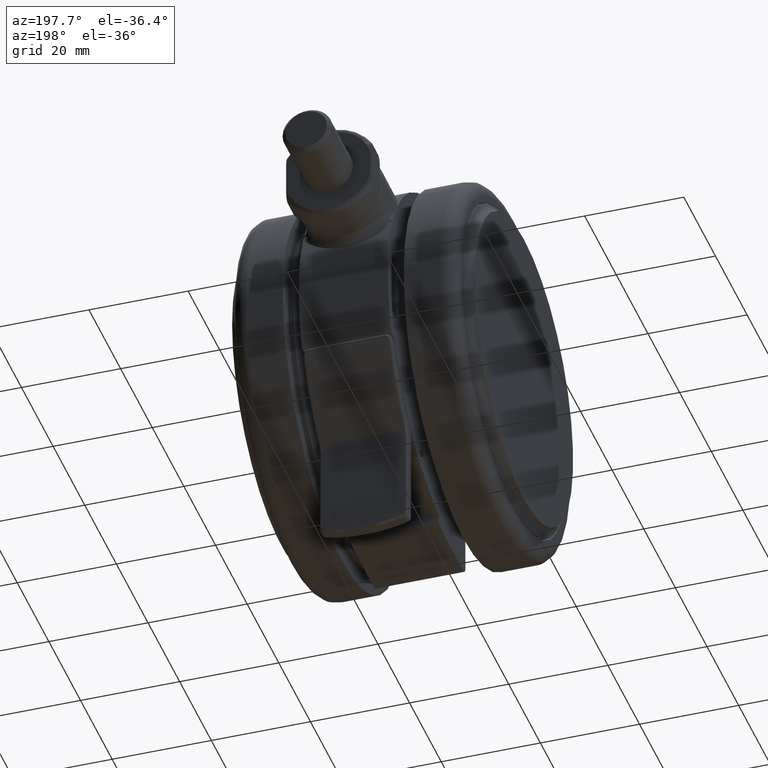
[diagram: clean part render]
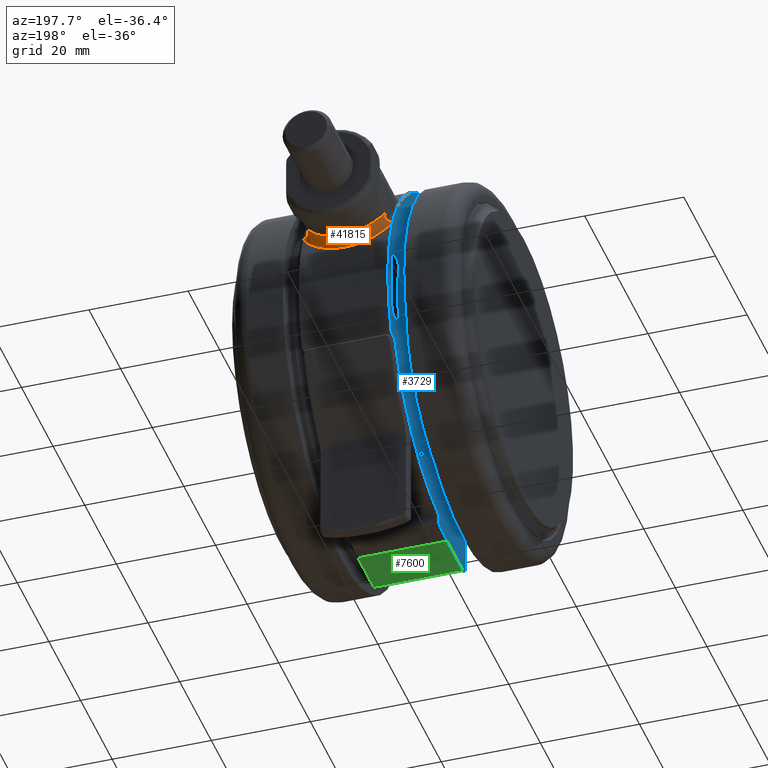
[diagram: same view with three faces highlighted in distinct colors, each labeled with its STEP entity id]
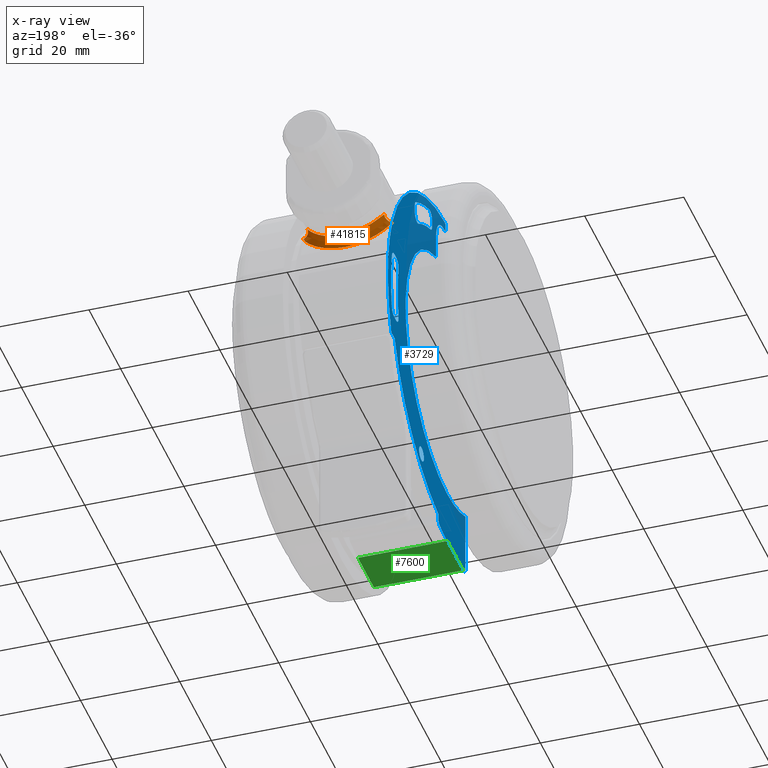
[diagram: x-ray of the same camera — body ghosted, the three highlighted faces saturated]
A machine part, auxiliary view with three faces highlighted in distinct colors.
The next image is the same camera in x-ray (body ghosted, the three faces saturated) — at least one of them is partly hidden behind the body in this view.
Their STEP definitions:

[orange] entity #41815 — the highlighted face is a freeform B-spline surface patch.
#128 = CARTESIAN_POINT ( 'NONE',  ( -36.55515623226185800, -14.49678096452658900, -17.37692106351045500 ) ) ;
#458 = CARTESIAN_POINT ( 'NONE',  ( -35.11798834948163500, -13.15208516184326700, -32.87353913873704400 ) ) ;
#624 = CARTESIAN_POINT ( 'NONE',  ( -35.72260263729866400, -11.40902939225469100, -31.14310544793826100 ) ) ;
#783 = CARTESIAN_POINT ( 'NONE',  ( -36.24627954034770700, -9.615761509691969500, -27.71168871883541500 ) ) ;
#960 = CARTESIAN_POINT ( 'NONE',  ( -36.35573804663481200, -9.192999894659211100, -23.34841008936225000 ) ) ;
#2012 = CARTESIAN_POINT ( 'NONE',  ( -34.69607720222516200, -14.22786796316412300, -33.50001148536061600 ) ) ;
#2179 = CARTESIAN_POINT ( 'NONE',  ( -35.68554882341086200, -11.53182913061704800, -31.33181954960103600 ) ) ;
#2322 = CARTESIAN_POINT ( 'NONE',  ( -36.34502395009247500, -9.235264713212428600, -25.99074648645920100 ) ) ;
#2469 = CARTESIAN_POINT ( 'NONE',  ( -36.04644484912527200, -10.34115615691610800, -19.50848258819556600 ) ) ;
#2635 = CARTESIAN_POINT ( 'NONE',  ( -34.93630199924810900, -13.63080391220758400, -15.80087668042069800 ) ) ;
#2694 = CARTESIAN_POINT ( 'NONE',  ( -36.78448284140579000, -13.96492879659918400, -17.82056437573884700 ) ) ;
#2800 = CARTESIAN_POINT ( 'NONE',  ( -35.29032269352384100, -12.75087954063294600, -29.89761119381510600 ) ) ;
#2810 = ORIENTED_EDGE ( 'NONE', *, *, #35802, .T. ) ;
#2858 = CARTESIAN_POINT ( 'NONE',  ( -37.46149026722777400, -12.15382703782053400, -20.09073099111820000 ) ) ;
#2956 = CARTESIAN_POINT ( 'NONE',  ( -35.87834684749826400, -11.07182725259599600, -25.65099109790211800 ) ) ;
#3011 = CARTESIAN_POINT ( 'NONE',  ( -37.82525692805421600, -11.00000000000717600, -24.09585673377635100 ) ) ;
#3110 = CARTESIAN_POINT ( 'NONE',  ( -35.60782384011246600, -11.86919873852513500, -20.60586581381866700 ) ) ;
#3274 = CARTESIAN_POINT ( 'NONE',  ( -34.65244414308080700, -14.35684071983261500, -17.44269137768515100 ) ) ;
#3348 = CARTESIAN_POINT ( 'NONE',  ( -37.69977894945471100, -11.41720464057487800, -27.21177603767621600 ) ) ;
#3391 = CARTESIAN_POINT ( 'NONE',  ( -36.11533580551714800, -10.09776936485525700, -20.00024783140030800 ) ) ;
#3431 = CARTESIAN_POINT ( 'NONE',  ( -37.11297076109961100, -13.13694482518501000, -30.35584532795593700 ) ) ;
#3503 = CARTESIAN_POINT ( 'NONE',  ( -36.88513145381682500, -13.71578737636843400, -30.94289655564686800 ) ) ;
#3546 = CARTESIAN_POINT ( 'NONE',  ( -35.31928883309965500, -12.60150605112100800, -16.58058568695641800 ) ) ;
#3581 = CARTESIAN_POINT ( 'NONE',  ( -37.79882490561961800, -11.08972168704871200, -25.77778270270358300 ) ) ;
#3653 = CARTESIAN_POINT ( 'NONE',  ( -36.62476291007291700, -14.34274337548590900, -31.49967753085571700 ) ) ;
#3744 = CARTESIAN_POINT ( 'NONE',  ( -37.48830264253831500, -12.07554491732151200, -20.22155650428678100 ) ) ;
#3752 = EDGE_CURVE ( 'NONE', #47247, #21084, #26216, .T. ) ;
#3910 = CARTESIAN_POINT ( 'NONE',  ( -36.30486840517461600, -14.98334483562556900, -17.02180975183569700 ) ) ;
#4209 = CARTESIAN_POINT ( 'NONE',  ( -35.20066288758336300, -12.92971942955352000, -32.70369797090793900 ) ) ;
#4392 = CARTESIAN_POINT ( 'NONE',  ( -35.84837629457028600, -11.00730364120883400, -30.59588506183982300 ) ) ;
#4553 = CARTESIAN_POINT ( 'NONE',  ( -36.30999994984237800, -9.372775588898665700, -26.81490109465830700 ) ) ;
#5928 = CARTESIAN_POINT ( 'NONE',  ( -35.93869872314921600, -10.70959525573036900, -30.14377004665470500 ) ) ;
#6076 = CARTESIAN_POINT ( 'NONE',  ( -36.36565581933127300, -9.153722604975669700, -25.24620557476157500 ) ) ;
#6251 = CARTESIAN_POINT ( 'NONE',  ( -35.93881289691216100, -10.70804481516824700, -18.86792410627424500 ) ) ;
#6313 = CARTESIAN_POINT ( 'NONE',  ( -36.38098685608309800, -14.85141390802005100, -17.10893047513354000 ) ) ;
#6408 = CARTESIAN_POINT ( 'NONE',  ( -34.69372165442310100, -14.23361084775798300, -15.49998920124693500 ) ) ;
#6465 = CARTESIAN_POINT ( 'NONE',  ( -36.91266165132926600, -13.64693793595780100, -18.12496915784122800 ) ) ;
#6564 = CARTESIAN_POINT ( 'NONE',  ( -35.51205468899996000, -12.14046911489652900, -28.92187551868610000 ) ) ;
#6621 = CARTESIAN_POINT ( 'NONE',  ( -37.54183397915785700, -11.91345569206638200, -20.54088567670966000 ) ) ;
#6625 = CARTESIAN_POINT ( 'NONE',  ( -35.99811527556079900, -15.47726490161965900, -16.71894176671117500 ) ) ;
#6730 = CARTESIAN_POINT ( 'NONE',  ( -35.89747693363187200, -11.01364212582914000, -25.07586791479943500 ) ) ;
#6885 = CARTESIAN_POINT ( 'NONE',  ( -35.51246891301055100, -12.13871854519089800, -20.08824858682999100 ) ) ;
#6952 = CARTESIAN_POINT ( 'NONE',  ( -37.82525612248529300, -10.99999999914741100, -24.49999999995632300 ) ) ;
#7032 = CARTESIAN_POINT ( 'NONE',  ( -34.45148830235374500, -14.82404264907670700, -17.09862616959008700 ) ) ;
#7106 = CARTESIAN_POINT ( 'NONE',  ( -37.63130571601269000, -11.63604617516592100, -27.82924064332484100 ) ) ;
#7148 = CARTESIAN_POINT ( 'NONE',  ( -35.96044444801644600, -10.63532963892519800, -18.98697726448631700 ) ) ;
#7182 = CARTESIAN_POINT ( 'NONE',  ( -37.37624666769676900, -12.40398205680457300, -29.33751718263952700 ) ) ;
#7270 = CARTESIAN_POINT ( 'NONE',  ( -36.84213650487051700, -13.82250245545517200, -31.04529622321571500 ) ) ;
#7311 = CARTESIAN_POINT ( 'NONE',  ( -35.27997426221923400, -12.71150811908022700, -16.48150588564900700 ) ) ;
#7357 = CARTESIAN_POINT ( 'NONE',  ( -37.82028204490126200, -11.01703272245951300, -25.13960477833167300 ) ) ;
#7436 = CARTESIAN_POINT ( 'NONE',  ( -36.61411752968402300, -14.36672245932378200, -31.51900622259868400 ) ) ;
#7476 = CARTESIAN_POINT ( 'NONE',  ( -34.69607939256150800, -14.22786262180900400, -33.49999999999994300 ) ) ;
#7522 = CARTESIAN_POINT ( 'NONE',  ( -37.37636541252361200, -12.40259994940207200, -19.67250637669675600 ) ) ;
#7682 = CARTESIAN_POINT ( 'NONE',  ( -35.99811617908694900, -15.47727034797280900, -16.71893860102446500 ) ) ;
#7829 = CARTESIAN_POINT ( 'NONE',  ( -34.69607939256150800, -14.22786262180900400, -33.49999999999994300 ) ) ;
#7991 = CARTESIAN_POINT ( 'NONE',  ( -35.28308271189578000, -12.70256049835171700, -32.50969738241538900 ) ) ;
#8154 = CARTESIAN_POINT ( 'NONE',  ( -35.92302232624125900, -10.76058861354868800, -30.21539707922520900 ) ) ;
#8309 = CARTESIAN_POINT ( 'NONE',  ( -36.35537676476852200, -9.194428859748747100, -25.66809340206969700 ) ) ;
#9682 = CARTESIAN_POINT ( 'NONE',  ( -36.01768721822131900, -10.43926458384514800, -29.66345060138819900 ) ) ;
#9780 = ORIENTED_EDGE ( 'NONE', *, *, #35349, .F. ) ;
#9840 = CARTESIAN_POINT ( 'NONE',  ( -36.37047241308982100, -9.134480634835529900, -24.13317800205805600 ) ) ;
#9990 = CARTESIAN_POINT ( 'NONE',  ( -35.84876284878062300, -11.00582887948606700, -18.40788551229723400 ) ) ;
#10049 = CARTESIAN_POINT ( 'NONE',  ( -36.20560956691512900, -15.15865635947245400, -16.90413277711254700 ) ) ;
#10053 = CARTESIAN_POINT ( 'NONE',  ( -37.82525612248529300, -10.99999999914741100, -24.49999999995632300 ) ) ;
#10145 = CARTESIAN_POINT ( 'NONE',  ( -34.55603668638787000, -14.58418195161320500, -31.73370586441214100 ) ) ;
#10211 = CARTESIAN_POINT ( 'NONE',  ( -36.95193251391544500, -13.54772028260588500, -18.22541974021383000 ) ) ;
#10316 = CARTESIAN_POINT ( 'NONE',  ( -35.58210545527753500, -11.94206469286391600, -28.53446155504089200 ) ) ;
#10370 = CARTESIAN_POINT ( 'NONE',  ( -37.65665000430351500, -11.55703346892945600, -21.35771084965235300 ) ) ;
#10373 = CARTESIAN_POINT ( 'NONE',  ( -34.45149231925952200, -14.82403343119722900, -17.09863260603699000 ) ) ;
#10463 = CARTESIAN_POINT ( 'NONE',  ( -35.90197594053295700, -10.99987821033594000, -24.21806416177764400 ) ) ;
#10624 = CARTESIAN_POINT ( 'NONE',  ( -35.43325608220077800, -12.35897750626615200, -19.71255959179226400 ) ) ;
#10798 = CARTESIAN_POINT ( 'NONE',  ( -36.16279554524310000, -15.22798549954170800, -32.13602727829218300 ) ) ;
#10876 = CARTESIAN_POINT ( 'NONE',  ( -37.49831965673433800, -12.04619451284945000, -28.72918992993434600 ) ) ;
#10922 = CARTESIAN_POINT ( 'NONE',  ( -35.84955225572986800, -11.00348040779415200, -18.40968351100398300 ) ) ;
#10964 = CARTESIAN_POINT ( 'NONE',  ( -37.45839470542826200, -12.16300157196535300, -28.92581480113567600 ) ) ;
#11040 = CARTESIAN_POINT ( 'NONE',  ( -36.75417159556613500, -14.03747969069417900, -31.24223242824109200 ) ) ;
#11084 = CARTESIAN_POINT ( 'NONE',  ( -35.17871239356642100, -12.98890219041386900, -16.25104307822680400 ) ) ;
#11123 = CARTESIAN_POINT ( 'NONE',  ( -37.82529131483701700, -10.99987988026489200, -24.18558114462352300 ) ) ;
#11198 = CARTESIAN_POINT ( 'NONE',  ( -36.56896142202441500, -14.46626956007070100, -31.59801613666288800 ) ) ;
#11278 = CARTESIAN_POINT ( 'NONE',  ( -37.28271336062941500, -12.66805317249577100, -19.27818758188520600 ) ) ;
#11774 = CARTESIAN_POINT ( 'NONE',  ( -35.30303202729350400, -12.64697868087535900, -32.46032194877468400 ) ) ;
#11940 = CARTESIAN_POINT ( 'NONE',  ( -35.97503084491300700, -10.58539762656063700, -29.92421046515427800 ) ) ;
#12105 = CARTESIAN_POINT ( 'NONE',  ( -36.36664906917365400, -9.149693695896242900, -25.08820354983062000 ) ) ;
#12622 =( BOUNDED_CURVE ( )  B_SPLINE_CURVE ( 2, ( #6625, #10373, #14135 ),
 .UNSPECIFIED., .F., .F. ) 
 B_SPLINE_CURVE_WITH_KNOTS ( ( 3, 3 ),
 ( 0.0000000000000000000, 1.000000000000000000 ),
 .UNSPECIFIED. ) 
 CURVE ( )  GEOMETRIC_REPRESENTATION_ITEM ( )  RATIONAL_B_SPLINE_CURVE ( ( 1.000000000000000000, 0.6320075972293285300, 1.000000000000000000 ) ) 
 REPRESENTATION_ITEM ( '' )  );
#13299 = CARTESIAN_POINT ( 'NONE',  ( -35.09986582767475500, -13.20123724071206600, -32.91214338700572000 ) ) ;
#13442 = CARTESIAN_POINT ( 'NONE',  ( -36.05489361850477100, -10.31001910058124700, -29.41784762583173300 ) ) ;
#13600 = CARTESIAN_POINT ( 'NONE',  ( -36.35151119476916600, -9.209669431724139000, -23.20863954505564300 ) ) ;
#13764 = CARTESIAN_POINT ( 'NONE',  ( -35.53131967880456400, -12.00334612102346600, -17.13274046867058700 ) ) ;
#13823 = CARTESIAN_POINT ( 'NONE',  ( -36.54215467944749200, -14.52116163078407500, -17.35966018031089000 ) ) ;
#13914 = CARTESIAN_POINT ( 'NONE',  ( -34.78829469765711500, -14.02927638798583500, -31.27581914788326500 ) ) ;
#13972 = CARTESIAN_POINT ( 'NONE',  ( -37.07934209850503700, -13.21997911700554300, -18.57577606531377900 ) ) ;
#14073 = CARTESIAN_POINT ( 'NONE',  ( -35.61523309759717600, -11.84749796736208300, -28.33730906305767800 ) ) ;
#14133 = CARTESIAN_POINT ( 'NONE',  ( -37.73470822711377800, -11.30313772371196500, -22.18327781971970900 ) ) ;
#14135 = CARTESIAN_POINT ( 'NONE',  ( -34.69372567461956400, -14.23360104872420400, -15.49999999999994700 ) ) ;
#14223 = CARTESIAN_POINT ( 'NONE',  ( -35.88441157004780300, -11.05334787458279600, -23.50483295130186400 ) ) ;
#14397 = CARTESIAN_POINT ( 'NONE',  ( -35.15765993653220500, -13.10414958192568600, -18.65178471239264000 ) ) ;
#14552 = CARTESIAN_POINT ( 'NONE',  ( -36.49667834694540900, -14.61880419315116700, -31.71561382768849700 ) ) ;
#14630 = CARTESIAN_POINT ( 'NONE',  ( -37.41395238338466100, -12.29339035712662600, -29.14873098418965100 ) ) ;
#14683 = CARTESIAN_POINT ( 'NONE',  ( -35.68102672232120700, -11.54100075199845700, -17.68078143226625400 ) ) ;
#14721 = CARTESIAN_POINT ( 'NONE',  ( -37.49708936336686800, -12.04778845529445200, -28.71529796503063600 ) ) ;
#14794 = CARTESIAN_POINT ( 'NONE',  ( -36.71915457321480100, -14.12143590763146700, -31.31487600060783900 ) ) ;
#14843 = CARTESIAN_POINT ( 'NONE',  ( -35.14071165277916000, -13.09125118467620700, -16.17266495661572600 ) ) ;
#14881 = CARTESIAN_POINT ( 'NONE',  ( -37.80557164086106100, -11.06690532190901300, -23.39311961004001400 ) ) ;
#14968 = CARTESIAN_POINT ( 'NONE',  ( -36.38331424830957400, -14.85052108653603000, -31.89035894284504700 ) ) ;
#15055 = CARTESIAN_POINT ( 'NONE',  ( -36.95257247012471400, -13.55726854239265000, -18.18520611601039500 ) ) ;
#15351 = CARTESIAN_POINT ( 'NONE',  ( -34.95870439463097100, -13.57013648274229700, -33.15439867332022300 ) ) ;
#15526 = CARTESIAN_POINT ( 'NONE',  ( -35.36999058872906000, -12.45971187970280500, -32.29184260063026100 ) ) ;
#15694 = CARTESIAN_POINT ( 'NONE',  ( -36.05545163414711100, -10.30850499739738700, -29.41939905919096200 ) ) ;
#15863 = CARTESIAN_POINT ( 'NONE',  ( -36.36994821753506800, -9.136568374476139500, -24.73826978665444500 ) ) ;
#17072 = CARTESIAN_POINT ( 'NONE',  ( -35.22700633558906000, -12.85742124607762600, -32.64384909369910300 ) ) ;
#17233 = CARTESIAN_POINT ( 'NONE',  ( -36.11214996780142900, -10.10784207801440700, -29.00169914144772700 ) ) ;
#17399 = CARTESIAN_POINT ( 'NONE',  ( -36.33106080738102200, -9.290041949495631000, -22.65520486555886800 ) ) ;
#17461 = CARTESIAN_POINT ( 'NONE',  ( -36.00288834672935000, -15.47403794687700600, -32.27918167249248400 ) ) ;
#17547 = CARTESIAN_POINT ( 'NONE',  ( -35.30030216566336100, -12.65478854184276600, -16.53218933803581700 ) ) ;
#17611 = CARTESIAN_POINT ( 'NONE',  ( -36.59336982221258700, -14.41183453438876100, -17.44488797518971200 ) ) ;
#17702 = CARTESIAN_POINT ( 'NONE',  ( -34.89573677731825500, -13.76495403056164300, -31.02984304155562300 ) ) ;
#17765 = CARTESIAN_POINT ( 'NONE',  ( -37.28320272522825000, -12.66940843598248300, -19.26390570097392500 ) ) ;
#17873 = CARTESIAN_POINT ( 'NONE',  ( -35.66642849926379500, -11.70011244191506000, -28.00506845173996600 ) ) ;
#17933 = CARTESIAN_POINT ( 'NONE',  ( -37.74577703865773500, -11.26668593300032800, -22.32476265072201100 ) ) ;
#18033 = CARTESIAN_POINT ( 'NONE',  ( -35.86551596773583100, -11.11064660282670700, -23.07674012266493700 ) ) ;
#18188 = CARTESIAN_POINT ( 'NONE',  ( -34.95881549974053100, -13.60727721647940800, -18.12603368985438100 ) ) ;
#18332 = CARTESIAN_POINT ( 'NONE',  ( -36.63602632450005800, -14.31855848021968900, -31.48047982607118200 ) ) ;
#18376 = EDGE_CURVE ( 'NONE', #21084, #35752, #22528, .T. ) ;
#18415 = CARTESIAN_POINT ( 'NONE',  ( -37.36835416826163900, -12.42547160023361900, -29.36252267166167600 ) ) ;
#18462 = CARTESIAN_POINT ( 'NONE',  ( -35.45317622939010200, -12.22002506969882100, -16.94333687544062200 ) ) ;
#18510 = CARTESIAN_POINT ( 'NONE',  ( -37.55663596706591500, -11.86756208085773200, -28.35859926413315400 ) ) ;
#18580 = CARTESIAN_POINT ( 'NONE',  ( -36.70794696675430700, -14.14825351123833700, -31.33793864051492100 ) ) ;
#18623 = CARTESIAN_POINT ( 'NONE',  ( -34.99754490942302000, -13.47425971329876900, -15.89028868670124300 ) ) ;
#18656 = CARTESIAN_POINT ( 'NONE',  ( -37.78430324280236600, -11.13855168054825400, -22.91874702760128500 ) ) ;
#18738 = CARTESIAN_POINT ( 'NONE',  ( -36.00288834672935000, -15.47403794687700600, -32.27918167249248400 ) ) ;
#18826 = CARTESIAN_POINT ( 'NONE',  ( -36.71231425196855700, -14.13798292876247100, -17.67044800403411400 ) ) ;
#19133 = CARTESIAN_POINT ( 'NONE',  ( -35.06893033609927800, -13.28246468312306500, -32.96684845953223700 ) ) ;
#19293 = CARTESIAN_POINT ( 'NONE',  ( -35.53235468359773100, -11.98869070425942200, -31.81942624551122700 ) ) ;
#19382 = ORIENTED_EDGE ( 'NONE', *, *, #32584, .F. ) ;
#19460 = CARTESIAN_POINT ( 'NONE',  ( -36.13848915468063400, -10.01337272387459300, -28.79075378976196100 ) ) ;
#19637 = CARTESIAN_POINT ( 'NONE',  ( -36.37046279934102700, -9.134518912990925400, -24.27175988845724300 ) ) ;
#20846 = CARTESIAN_POINT ( 'NONE',  ( -35.29936456525456400, -12.65740334978872500, -32.47014289061806400 ) ) ;
#21008 = CARTESIAN_POINT ( 'NONE',  ( -36.27291886942272500, -9.515771065052240000, -27.45316301572313500 ) ) ;
#21084 = VERTEX_POINT ( 'NONE', #10053 ) ;
#21161 = CARTESIAN_POINT ( 'NONE',  ( -36.27353312831491600, -9.513435455854839500, -21.55359389111617900 ) ) ;
#21305 = CARTESIAN_POINT ( 'NONE',  ( -35.22775445925720600, -12.85537344384846600, -16.35815758324778500 ) ) ;
#21370 = CARTESIAN_POINT ( 'NONE',  ( -36.66073791898512700, -14.26007388402885900, -17.56776926032903700 ) ) ;
#21472 = CARTESIAN_POINT ( 'NONE',  ( -34.95763438384301500, -13.61034926947970500, -30.87691558641936900 ) ) ;
#21533 = CARTESIAN_POINT ( 'NONE',  ( -37.43723053586203500, -12.22528992049909200, -19.96628995177435000 ) ) ;
#21624 = CARTESIAN_POINT ( 'NONE',  ( -35.81186620901666400, -11.27252265064364400, -26.78541162100211500 ) ) ;
#21685 = CARTESIAN_POINT ( 'NONE',  ( -37.77892496494815300, -11.15681622532709500, -22.80682729147557500 ) ) ;
#21784 = CARTESIAN_POINT ( 'NONE',  ( -35.81253740106930600, -11.27042605102397700, -22.22125358722162500 ) ) ;
#21951 = CARTESIAN_POINT ( 'NONE',  ( -34.89679263363819200, -13.76222555172457400, -17.97263528012620200 ) ) ;
#22031 = CARTESIAN_POINT ( 'NONE',  ( -37.72640896010328500, -11.33037019789495900, -26.91659883914135400 ) ) ;
#22079 = CARTESIAN_POINT ( 'NONE',  ( -36.29494073584859800, -9.430320519814920000, -21.96660735472759300 ) ) ;
#22115 = CARTESIAN_POINT ( 'NONE',  ( -36.71133914685890400, -14.14031384315731000, -31.33155104922058600 ) ) ;
#22189 = CARTESIAN_POINT ( 'NONE',  ( -37.23792549904079200, -12.79249974631330000, -29.89353957895961900 ) ) ;
#22234 = CARTESIAN_POINT ( 'NONE',  ( -35.36277877502706000, -12.47906740601342600, -16.69289719172702400 ) ) ;
#22275 = CARTESIAN_POINT ( 'NONE',  ( -37.72383561574671500, -11.33977306409153300, -27.03128258481346100 ) ) ;
#22354 = CARTESIAN_POINT ( 'NONE',  ( -36.66397747050916700, -14.25265772654398500, -31.42620015085245600 ) ) ;
#22389 = CARTESIAN_POINT ( 'NONE',  ( -36.00288834672935000, -15.47403794687700600, -32.27918167249248400 ) ) ;
#22396 = CARTESIAN_POINT ( 'NONE',  ( -34.69372567461956400, -14.23360104872420400, -15.49999999999994700 ) ) ;
#22434 = CARTESIAN_POINT ( 'NONE',  ( -37.72447445591831900, -11.33769103558005200, -21.97450904967292800 ) ) ;
#22528 = B_SPLINE_CURVE_WITH_KNOTS ( 'NONE', 3,
 ( #6952, #25608, #44423, #22031, #48150, #25770, #3348, #29563, #7106, #33320, #10876, #37049, #14630, #40816, #18415, #44575, #22189, #48323, #25930, #3503, #29733, #7270, #33480, #11040, #37218, #14794, #40973, #18580, #44736, #22354, #48472, #26104, #3653, #29893, #7436, #33644, #11198, #37376, #14968, #41123, #18738 ),
 .UNSPECIFIED., .F., .F.,
 ( 4, 2, 2, 1, 1, 2, 2, 2, 1, 1, 2, 2, 2, 1, 2, 2, 1, 1, 1, 2, 2, 1, 1, 1, 2, 4 ),
 ( 0.4998237799459088200, 0.6248678349594560800, 0.6326830883978026300, 0.6404983418361491800, 0.6561288487128423800, 0.6873898624662282400, 0.7499118899729998500, 0.7577271434113466200, 0.7655423968496931600, 0.7811729037263863700, 0.8124339174797734500, 0.8749559449865473800, 0.8827711984248940400, 0.8905864518632407000, 0.9062169587399335800, 0.9071938654197266900, 0.9081707720995196900, 0.9101245854591051300, 0.9140322121782750200, 0.9218474656166147900, 0.9228243722964070100, 0.9238012789761992400, 0.9257550923357837900, 0.9296627190549531200, 0.9374779724932920100, 1.000000000000000000 ),
 .UNSPECIFIED. ) ;
#22611 = CARTESIAN_POINT ( 'NONE',  ( -36.63663868887155700, -14.31658522284799100, -17.52112367262714400 ) ) ;
#22924 = CARTESIAN_POINT ( 'NONE',  ( -35.10945520013684300, -13.17485033506651100, -32.89015066814100400 ) ) ;
#23080 = CARTESIAN_POINT ( 'NONE',  ( -35.67792354448474900, -11.54812155799498400, -31.31634908582422800 ) ) ;
#23245 = CARTESIAN_POINT ( 'NONE',  ( -36.20744026096840400, -9.760989687357851000, -28.14865751725063300 ) ) ;
#23408 = CARTESIAN_POINT ( 'NONE',  ( -36.36124380816972500, -9.171160108714293100, -23.57747549543069400 ) ) ;
#24600 = CARTESIAN_POINT ( 'NONE',  ( -35.53111368277146200, -12.00402723492332600, -31.86816265567781100 ) ) ;
#24746 = CARTESIAN_POINT ( 'NONE',  ( -36.33036501525362600, -9.292763750055000200, -26.36064751707703400 ) ) ;
#24908 = CARTESIAN_POINT ( 'NONE',  ( -36.09286761974478000, -10.17732923448612700, -19.83805068003476900 ) ) ;
#25081 = CARTESIAN_POINT ( 'NONE',  ( -35.09996392327621400, -13.20098616595140800, -16.08931221868114400 ) ) ;
#25138 = CARTESIAN_POINT ( 'NONE',  ( -36.70867812681939300, -14.14659984652161900, -17.66333299873028700 ) ) ;
#25226 = CARTESIAN_POINT ( 'NONE',  ( -35.15715365558868700, -13.10562570484854000, -30.34995623850175800 ) ) ;
#25279 = CARTESIAN_POINT ( 'NONE',  ( -37.44932116158577200, -12.18972205387362400, -20.02784841718727900 ) ) ;
#25374 = CARTESIAN_POINT ( 'NONE',  ( -35.86479306710577200, -11.11290576779714100, -25.93729989697106200 ) ) ;
#25440 = CARTESIAN_POINT ( 'NONE',  ( -37.81737099262471000, -11.02725990712742100, -23.69430151537235200 ) ) ;
#25540 = CARTESIAN_POINT ( 'NONE',  ( -35.64927717375567800, -11.74987704783700300, -20.86917665231449300 ) ) ;
#25608 = CARTESIAN_POINT ( 'NONE',  ( -37.82525453572685600, -11.00000000000129100, -25.30885647837396800 ) ) ;
#25690 = CARTESIAN_POINT ( 'NONE',  ( -34.78890260994594300, -14.02768285683141900, -17.72547066699898700 ) ) ;
#25770 = CARTESIAN_POINT ( 'NONE',  ( -37.71328710558184100, -11.37324194087037400, -27.06547219879070500 ) ) ;
#25818 = CARTESIAN_POINT ( 'NONE',  ( -36.21064625996030600, -9.750462754510740700, -20.85855948202963400 ) ) ;
#25857 = CARTESIAN_POINT ( 'NONE',  ( -36.95235824233066100, -13.55787570688599100, -30.81556799046797200 ) ) ;
#25930 = CARTESIAN_POINT ( 'NONE',  ( -37.00638128087331300, -13.41213506193963300, -30.64358791031077100 ) ) ;
#25977 = CARTESIAN_POINT ( 'NONE',  ( -35.32659690720182500, -12.58100430762332400, -16.59919539389964500 ) ) ;
#26024 = CARTESIAN_POINT ( 'NONE',  ( -37.78357961835092000, -11.14097797163687400, -26.09484072889895500 ) ) ;
#26104 = CARTESIAN_POINT ( 'NONE',  ( -36.62731490384764000, -14.33696561079059600, -31.49500284976986100 ) ) ;
#26187 = CARTESIAN_POINT ( 'NONE',  ( -37.53658232497621600, -11.92950491748223400, -20.50404344000532600 ) ) ;
#26216 = B_SPLINE_CURVE_WITH_KNOTS ( 'NONE', 3,
 ( #36244, #10049, #6313, #13823, #40006, #17611, #43769, #21370, #47512, #25138, #2694, #28904, #6465, #32673, #10211, #36405, #13972, #40168, #17765, #43924, #21533, #47671, #25279, #2858, #29071, #6621, #32820, #10370, #36565, #14133, #40331, #17933, #44081, #21685, #47828, #25440, #3011, #29233 ),
 .UNSPECIFIED., .F., .F.,
 ( 4, 2, 2, 1, 2, 2, 2, 2, 1, 1, 2, 2, 2, 1, 1, 1, 2, 2, 2, 1, 1, 2, 4 ),
 ( 0.0000000000000000000, 0.06247797249322891600, 0.07028771905488301300, 0.07809746561653709000, 0.08590721217819118100, 0.09371695873984527100, 0.1249559449864625500, 0.1327656915481169300, 0.1405754381097713600, 0.1561949312330801200, 0.1874339174796979300, 0.2499118899729333700, 0.2538167632537609000, 0.2577216365345884100, 0.2655313830962440800, 0.2811508762195558100, 0.3123898624661787200, 0.3748678349594253300, 0.3826775815210807200, 0.3904873280827361200, 0.4061068212060463000, 0.4373458074526671000, 0.4998237799459088200 ),
 .UNSPECIFIED. ) ;
#26346 = CARTESIAN_POINT ( 'NONE',  ( -36.49598857805715800, -14.61788896013231000, -17.28505576175279400 ) ) ;
#26647 =( BOUNDED_SURFACE ( )  B_SPLINE_SURFACE ( 2, 3, ( 
 ( #2012, #43075, #35732, #13299, #39478, #17072, #43232, #20846, #46979, #24600, #2179, #28371, #5928, #32156, #9682, #35876, #13442, #39641, #17233, #43392, #21008, #47141, #24746, #2322, #28530, #6076, #32311, #9840, #36031, #13600, #39790, #17399, #43544, #21161, #47300, #24908, #2469, #28681, #6251, #32455, #9990, #36188, #13764, #39948, #17547, #43709, #21305, #47459, #25081, #2635, #28841, #6408 ),
 ( #32613, #10145, #36349, #13914, #40110, #17702, #43865, #21472, #47604, #25226, #2800, #29015, #6564, #32763, #10316, #36502, #14073, #40273, #17873, #44021, #21624, #47769, #25374, #2956, #29169, #6730, #32922, #10463, #36667, #14223, #40429, #18033, #44191, #21784, #47923, #25540, #3110, #29327, #6885, #33083, #10624, #36816, #14397, #40579, #18188, #44352, #21951, #48078, #25690, #3274, #29477, #7032 ),
 ( #33245, #10798, #36979, #14552, #40742, #18332, #44504, #22115, #48243, #25857, #3431, #29651, #7182, #33404, #10964, #37137, #14721, #40895, #18510, #44654, #22275, #48404, #26024, #3581, #29814, #7357, #33561, #11123, #37303, #14881, #41056, #18656, #44830, #22434, #48552, #26187, #3744, #29980, #7522, #33739, #11278, #37458, #15055, #41212, #18826, #44973, #22611, #128, #26346, #3910, #30142, #7682 ) ),
 .UNSPECIFIED., .F., .F., .F. ) 
 B_SPLINE_SURFACE_WITH_KNOTS ( ( 3, 3 ),
 ( 4, 2, 2, 2, 2, 2, 2, 2, 2, 2, 2, 2, 2, 2, 2, 2, 2, 2, 2, 2, 2, 2, 2, 2, 2, 4 ),
 ( 0.0000000000000000000, 1.000000000000000000 ),
 ( 0.02223620517367375100, 0.02313469480081385000, 0.02358393961438390000, 0.02380856202116889800, 0.02403318442795395300, 0.02583016368223410200, 0.02672865330937419800, 0.02695327571615925200, 0.02717789812294425100, 0.02762714293651429700, 0.02942412219079449900, 0.02987336700436450000, 0.03032261181793454900, 0.03122110144507464800, 0.03211959107221475100, 0.03256883588578480400, 0.03301808069935485000, 0.03481505995363500000, 0.03571354958077509900, 0.03616279439434515200, 0.03661203920791520500, 0.03840901846219540300, 0.03863364086898039800, 0.03885826327576544900, 0.03930750808933549500, 0.04020599771647555300 ),
 .UNSPECIFIED. ) 
 GEOMETRIC_REPRESENTATION_ITEM ( )  RATIONAL_B_SPLINE_SURFACE ( (
 ( 1.000000000000000000, 1.000000000000000000, 1.000000000000000000, 1.000000000000000000, 1.000000000000000000, 1.000000000000000000, 1.000000000000000000, 1.000000000000000000, 1.000000000000000000, 1.000000000000000000, 1.000000000000000000, 1.000000000000000000, 1.000000000000000000, 1.000000000000000000, 1.000000000000000000, 1.000000000000000000, 1.000000000000000000, 1.000000000000000000, 1.000000000000000000, 1.000000000000000000, 1.000000000000000000, 1.000000000000000000, 1.000000000000000000, 1.000000000000000000, 1.000000000000000000, 1.000000000000000000, 1.000000000000000000, 1.000000000000000000, 1.000000000000000000, 1.000000000000000000, 1.000000000000000000, 1.000000000000000000, 1.000000000000000000, 1.000000000000000000, 1.000000000000000000, 1.000000000000000000, 1.000000000000000000, 1.000000000000000000, 1.000000000000000000, 1.000000000000000000, 1.000000000000000000, 1.000000000000000000, 1.000000000000000000, 1.000000000000000000, 1.000000000000000000, 1.000000000000000000, 1.000000000000000000, 1.000000000000000000, 1.000000000000000000, 1.000000000000000000, 1.000000000000000000, 1.000000000000000000),
 ( 0.6320382900434380300, 0.6295513474257670200, 0.6272944057542140200, 0.6242374339082490400, 0.6232729824346909800, 0.6219024681707010500, 0.6214564528748759400, 0.6205986710652560100, 0.6201870581564269400, 0.6166606029172999600, 0.6147663792918249800, 0.6132471862274731000, 0.6129584674758920000, 0.6127960189415740900, 0.6127734166568690200, 0.6127460134309069600, 0.6127411372708869700, 0.6127510657295709400, 0.6127901164063039900, 0.6131010378699219800, 0.6137040892133419600, 0.6142969557916360100, 0.6144085566701309500, 0.6146075675554869600, 0.6146949542489079700, 0.6149086103566989700, 0.6149851269158139700, 0.6149825032745319700, 0.6149033938818889700, 0.6146861432763950400, 0.6145976672839649200, 0.6143960289247980500, 0.6142828205108880100, 0.6136815044129410000, 0.6130731167274020600, 0.6126870870773260000, 0.6126493249647330100, 0.6128389041929269700, 0.6129430836183570300, 0.6132454442565240500, 0.6134440658316580000, 0.6147093544131639900, 0.6166067863383000200, 0.6201193641983480100, 0.6205285538023830300, 0.6213861256641840500, 0.6218325731506340000, 0.6232043320495630500, 0.6241706593292010200, 0.6272367530828700800, 0.6295044548940349500, 0.6320076943591500500),
 ( 1.000000000000000000, 1.000000000000000000, 1.000000000000000000, 1.000000000000000000, 1.000000000000000000, 1.000000000000000000, 1.000000000000000000, 1.000000000000000000, 1.000000000000000000, 1.000000000000000000, 1.000000000000000000, 1.000000000000000000, 1.000000000000000000, 1.000000000000000000, 1.000000000000000000, 1.000000000000000000, 1.000000000000000000, 1.000000000000000000, 1.000000000000000000, 1.000000000000000000, 1.000000000000000000, 1.000000000000000000, 1.000000000000000000, 1.000000000000000000, 1.000000000000000000, 1.000000000000000000, 1.000000000000000000, 1.000000000000000000, 1.000000000000000000, 1.000000000000000000, 1.000000000000000000, 1.000000000000000000, 1.000000000000000000, 1.000000000000000000, 1.000000000000000000, 1.000000000000000000, 1.000000000000000000, 1.000000000000000000, 1.000000000000000000, 1.000000000000000000, 1.000000000000000000, 1.000000000000000000, 1.000000000000000000, 1.000000000000000000, 1.000000000000000000, 1.000000000000000000, 1.000000000000000000, 1.000000000000000000, 1.000000000000000000, 1.000000000000000000, 1.000000000000000000, 1.000000000000000000) ) ) 
 REPRESENTATION_ITEM ( '' )  SURFACE ( )  );
#26684 = CARTESIAN_POINT ( 'NONE',  ( -35.15512439168942600, -13.05275549851974400, -32.80009465783162200 ) ) ;
#26846 = CARTESIAN_POINT ( 'NONE',  ( -35.80824626479473200, -11.13731521936434300, -30.78120802313758700 ) ) ;
#27005 = CARTESIAN_POINT ( 'NONE',  ( -36.26347327534240600, -9.550615721401399600, -27.49260810070027000 ) ) ;
#27174 = CARTESIAN_POINT ( 'NONE',  ( -36.34068973992491900, -9.252308101509060000, -22.88435574377959700 ) ) ;
#28371 = CARTESIAN_POINT ( 'NONE',  ( -35.88007859949876600, -10.90494517066634600, -30.45044009792056600 ) ) ;
#28417 = FACE_OUTER_BOUND ( 'NONE', #42738, .T. ) ;
#28530 = CARTESIAN_POINT ( 'NONE',  ( -36.35113033374766900, -9.211173303853028600, -25.80409530110767200 ) ) ;
#28681 = CARTESIAN_POINT ( 'NONE',  ( -35.96692154915951500, -10.61317476098896700, -19.02624979864351600 ) ) ;
#28841 = CARTESIAN_POINT ( 'NONE',  ( -34.81874390473140600, -13.92887530319384500, -15.63697544834868600 ) ) ;
#28904 = CARTESIAN_POINT ( 'NONE',  ( -36.84276384836632400, -13.82195768156478100, -17.95244729983962600 ) ) ;
#29015 = CARTESIAN_POINT ( 'NONE',  ( -35.46044043427739500, -12.28461697608167200, -29.17166764106650200 ) ) ;
#29071 = CARTESIAN_POINT ( 'NONE',  ( -37.48919341471537300, -12.07160715303766300, -20.23889218362901600 ) ) ;
#29169 = CARTESIAN_POINT ( 'NONE',  ( -35.88400671342344600, -11.05462580721904300, -25.50666595080002000 ) ) ;
#29233 = CARTESIAN_POINT ( 'NONE',  ( -37.82525612248529300, -10.99999999914741100, -24.49999999995632300 ) ) ;
#29327 = CARTESIAN_POINT ( 'NONE',  ( -35.53730762546151600, -12.06887847859680500, -20.21664034133298300 ) ) ;
#29477 = CARTESIAN_POINT ( 'NONE',  ( -34.55542402157001200, -14.58553403722125100, -17.26516619676668200 ) ) ;
#29563 = CARTESIAN_POINT ( 'NONE',  ( -37.66547730925149300, -11.52785233042470400, -27.54863773809253800 ) ) ;
#29607 = CARTESIAN_POINT ( 'NONE',  ( -36.05933932939613100, -10.29705068635589300, -19.58666641905041700 ) ) ;
#29651 = CARTESIAN_POINT ( 'NONE',  ( -37.31528175114142000, -12.57812255204904900, -29.60037722692580400 ) ) ;
#29733 = CARTESIAN_POINT ( 'NONE',  ( -36.87062402062500200, -13.75193012533071300, -30.97796275103127800 ) ) ;
#29779 = CARTESIAN_POINT ( 'NONE',  ( -35.31594236709295800, -12.61088243154937200, -16.57210586319586600 ) ) ;
#29814 = CARTESIAN_POINT ( 'NONE',  ( -37.80517555073886600, -11.06824591642379100, -25.61779597239575800 ) ) ;
#29893 = CARTESIAN_POINT ( 'NONE',  ( -36.62050819817588400, -14.35234384522217600, -31.50742591890739400 ) ) ;
#29980 = CARTESIAN_POINT ( 'NONE',  ( -37.40559841137076100, -12.31803007250457300, -19.80821411306349200 ) ) ;
#30022 = B_SPLINE_CURVE_WITH_KNOTS ( 'NONE', 3,
 ( #7829, #30295, #37781, #15351, #41522, #19133, #45283, #22924, #458, #26684, #4209, #30462, #7991, #34214, #11774, #37942, #15526, #41681, #19293, #45450, #23080, #624, #26846, #4392, #30623, #8154, #34374, #11940, #38103, #15694, #41852, #19460, #45617, #23245, #783, #27005, #4553, #30795, #8309, #34536, #12105, #38275, #15863, #42036, #19637, #45782, #23408, #960, #27174, #42945, #39341, #22079, #48201, #25818, #3391, #29607, #7148, #33365, #10922, #37096, #14683, #40861, #18462, #44620, #22234, #48364, #25977, #3546, #29779, #7311, #33523, #11084, #37267, #14843, #41018, #18623, #44784, #22396 ),
 .UNSPECIFIED., .F., .F.,
 ( 4, 2, 1, 1, 2, 2, 1, 1, 1, 2, 2, 2, 2, 2, 2, 2, 2, 2, 2, 2, 2, 2, 2, 2, 2, 2, 2, 2, 2, 2, 2, 2, 2, 2, 1, 1, 1, 2, 2, 1, 1, 2, 2, 4 ),
 ( 0.0000000000000000000, 0.03125000000000139500, 0.04687500000000222700, 0.05468750000000263700, 0.05859375000000325400, 0.06250000000000387200, 0.07812500000000706400, 0.08593750000000827100, 0.08984375000000867400, 0.09179687500000884000, 0.09375000000000902100, 0.1250000000000083500, 0.1562500000000076900, 0.1875000000000070200, 0.2187500000000067400, 0.2343750000000063800, 0.2500000000000060000, 0.2812500000000046600, 0.3125000000000032800, 0.3437500000000018900, 0.3750000000000005000, 0.4374999999999978900, 0.4687499999999967800, 0.4843749999999959500, 0.4999999999999951700, 0.5312499999999941200, 0.5624999999999930100, 0.5937499999999920100, 0.6249999999999909000, 0.6874999999999887900, 0.7499999999999866800, 0.7812499999999857900, 0.8124999999999849000, 0.8749999999999831200, 0.8906249999999829000, 0.8984374999999825700, 0.9023437499999825700, 0.9042968749999827900, 0.9062499999999829000, 0.9218749999999859000, 0.9296874999999874500, 0.9335937499999882300, 0.9374999999999891200, 1.000000000000000000 ),
 .UNSPECIFIED. ) ;
#30142 = CARTESIAN_POINT ( 'NONE',  ( -36.15928638640550500, -15.22980109975285900, -16.86277971080243500 ) ) ;
#30295 = CARTESIAN_POINT ( 'NONE',  ( -34.77599946041262100, -14.03296938246880800, -33.41207683949098600 ) ) ;
#30462 = CARTESIAN_POINT ( 'NONE',  ( -35.25536008524656500, -12.77941158943895200, -32.57677437728212800 ) ) ;
#30623 = CARTESIAN_POINT ( 'NONE',  ( -35.90482883345517000, -10.82115846580232700, -30.31133924654701800 ) ) ;
#30795 = CARTESIAN_POINT ( 'NONE',  ( -36.33273090503290300, -9.283664795945432100, -26.35877242000065500 ) ) ;
#31803 = CARTESIAN_POINT ( 'NONE',  ( -35.99811527556079900, -15.47726490161965900, -16.71894176671117500 ) ) ;
#32156 = CARTESIAN_POINT ( 'NONE',  ( -36.00482115513326400, -10.48356199558600600, -29.74418251253168300 ) ) ;
#32311 = CARTESIAN_POINT ( 'NONE',  ( -36.37040436083631800, -9.134751592067068800, -24.87480138787974200 ) ) ;
#32455 = CARTESIAN_POINT ( 'NONE',  ( -35.87976752998341800, -10.90425505008284700, -18.55895287195659500 ) ) ;
#32584 = EDGE_CURVE ( 'NONE', #35752, #34458, #44910, .T. ) ;
#32613 = CARTESIAN_POINT ( 'NONE',  ( -34.45280112021347200, -14.82112098918215000, -31.89931171972426700 ) ) ;
#32673 = CARTESIAN_POINT ( 'NONE',  ( -36.92553332010082600, -13.61452785778634800, -18.15744400820869600 ) ) ;
#32763 = CARTESIAN_POINT ( 'NONE',  ( -35.57067695198902900, -11.97453666322061800, -28.59945803666009900 ) ) ;
#32820 = CARTESIAN_POINT ( 'NONE',  ( -37.58221321066444900, -11.78918439976165400, -20.80921100357775100 ) ) ;
#32922 = CARTESIAN_POINT ( 'NONE',  ( -35.90189958880667100, -11.00012339019163600, -24.78956803552831900 ) ) ;
#33083 = CARTESIAN_POINT ( 'NONE',  ( -35.46046937181674300, -12.28369254589296500, -19.83636401435491300 ) ) ;
#33245 = CARTESIAN_POINT ( 'NONE',  ( -36.00288834678615000, -15.47403794688920800, -32.27918167249959000 ) ) ;
#33320 = CARTESIAN_POINT ( 'NONE',  ( -37.55660228018885500, -11.86893365080549900, -28.37866309515943900 ) ) ;
#33327 = CARTESIAN_POINT ( 'NONE',  ( -34.69607939256150800, -14.22786262180900400, -33.49999999999994300 ) ) ;
#33365 = CARTESIAN_POINT ( 'NONE',  ( -35.92515239893902600, -10.75408774066967900, -18.79155995984797300 ) ) ;
#33404 = CARTESIAN_POINT ( 'NONE',  ( -37.44501400241366400, -12.20248955028493400, -28.99501358222190100 ) ) ;
#33480 = CARTESIAN_POINT ( 'NONE',  ( -36.79890475884921800, -13.92902575293427600, -31.14528699538303500 ) ) ;
#33523 = CARTESIAN_POINT ( 'NONE',  ( -35.23265978683719600, -12.84226938771613100, -16.36868986308770600 ) ) ;
#33561 = CARTESIAN_POINT ( 'NONE',  ( -37.82522053001871900, -11.00012141914691300, -24.82125833246603400 ) ) ;
#33644 = CARTESIAN_POINT ( 'NONE',  ( -36.59914576596217700, -14.40011653147245600, -31.54573227945979500 ) ) ;
#33739 = CARTESIAN_POINT ( 'NONE',  ( -37.31495823142311300, -12.57750735905181100, -19.40767389035816500 ) ) ;
#33774 = ORIENTED_EDGE ( 'NONE', *, *, #18376, .F. ) ;
#34214 = CARTESIAN_POINT ( 'NONE',  ( -35.29504201127758000, -12.66926002167360600, -32.48017541360394500 ) ) ;
#34374 = CARTESIAN_POINT ( 'NONE',  ( -35.95820720450629400, -10.64242148194923000, -30.02132562013266800 ) ) ;
#34458 = VERTEX_POINT ( 'NONE', #33327 ) ;
#34536 = CARTESIAN_POINT ( 'NONE',  ( -36.36101020326253800, -9.172086676152211700, -25.43678606176843700 ) ) ;
#35349 = EDGE_CURVE ( 'NONE', #34458, #43701, #30022, .T. ) ;
#35732 = CARTESIAN_POINT ( 'NONE',  ( -34.93710895094175600, -13.62869771384502300, -33.19991968437300000 ) ) ;
#35752 = VERTEX_POINT ( 'NONE', #17461 ) ;
#35802 = EDGE_CURVE ( 'NONE', #47247, #43701, #12622, .T. ) ;
#35876 = CARTESIAN_POINT ( 'NONE',  ( -36.04271487323307400, -10.35252346860270800, -29.50034603133029500 ) ) ;
#36031 = CARTESIAN_POINT ( 'NONE',  ( -36.36579100576086900, -9.153182685031948700, -23.76295603367189800 ) ) ;
#36188 = CARTESIAN_POINT ( 'NONE',  ( -35.68602683460061100, -11.53041901070640700, -17.66951533413213600 ) ) ;
#36244 = CARTESIAN_POINT ( 'NONE',  ( -35.99811527556079900, -15.47726490161965900, -16.71894176671117500 ) ) ;
#36349 = CARTESIAN_POINT ( 'NONE',  ( -34.65250245425291100, -14.35680229606545500, -31.55715213494854200 ) ) ;
#36405 = CARTESIAN_POINT ( 'NONE',  ( -36.99108746103818400, -13.44810256492034000, -18.32839921172173400 ) ) ;
#36502 = CARTESIAN_POINT ( 'NONE',  ( -35.60437598098489100, -11.87856724804885600, -28.40343685360312900 ) ) ;
#36565 = CARTESIAN_POINT ( 'NONE',  ( -37.69784564058681300, -11.42413380355122300, -21.73922361660785200 ) ) ;
#36667 = CARTESIAN_POINT ( 'NONE',  ( -35.89762895267568200, -11.01315321429600200, -23.93272487557568000 ) ) ;
#36816 = CARTESIAN_POINT ( 'NONE',  ( -35.29102575120452200, -12.74890168876593500, -19.10460379894097100 ) ) ;
#36979 = CARTESIAN_POINT ( 'NONE',  ( -36.30720527829975500, -14.98274435333127000, -31.97773700153717900 ) ) ;
#37049 = CARTESIAN_POINT ( 'NONE',  ( -37.42321133082349900, -12.26636544859443500, -29.10361008680515100 ) ) ;
#37096 = CARTESIAN_POINT ( 'NONE',  ( -35.80883081313341200, -11.13542668134200900, -18.22147573808030400 ) ) ;
#37137 = CARTESIAN_POINT ( 'NONE',  ( -37.48442346971716400, -12.08567806336105300, -28.78601088405163100 ) ) ;
#37218 = CARTESIAN_POINT ( 'NONE',  ( -36.72177660236435800, -14.11515303789631100, -31.30945025259302400 ) ) ;
#37267 = CARTESIAN_POINT ( 'NONE',  ( -35.15587356125516300, -13.05047996010473300, -16.20361700788509300 ) ) ;
#37303 = CARTESIAN_POINT ( 'NONE',  ( -37.82042264947156700, -11.01655142225801300, -23.86824802887691600 ) ) ;
#37376 = CARTESIAN_POINT ( 'NONE',  ( -36.54267629898760800, -14.52184616071200600, -31.64086358049866000 ) ) ;
#37458 = CARTESIAN_POINT ( 'NONE',  ( -37.11346791628160700, -13.13568780413211100, -18.64529885816280700 ) ) ;
#37781 = CARTESIAN_POINT ( 'NONE',  ( -34.85152542986179500, -13.84411946125415000, -33.31468611271166900 ) ) ;
#37942 = CARTESIAN_POINT ( 'NONE',  ( -35.30736372319319800, -12.63487976443709300, -32.44948323394307700 ) ) ;
#38103 = CARTESIAN_POINT ( 'NONE',  ( -36.02477067623562600, -10.41536588622715300, -29.62349949279227300 ) ) ;
#38275 = CARTESIAN_POINT ( 'NONE',  ( -36.36805971798233400, -9.144082641628463300, -24.97173912893707400 ) ) ;
#39341 = CARTESIAN_POINT ( 'NONE',  ( -36.30844634729230300, -9.378103425914616800, -22.19588994601185300 ) ) ;
#39478 = CARTESIAN_POINT ( 'NONE',  ( -35.15203700680400800, -13.06159715115880500, -32.80913493588905500 ) ) ;
#39641 = CARTESIAN_POINT ( 'NONE',  ( -36.09020541030787400, -10.18599353160802700, -29.16919438228383400 ) ) ;
#39790 = CARTESIAN_POINT ( 'NONE',  ( -36.34553639261612500, -9.233246620015188800, -23.02403732212479800 ) ) ;
#39948 = CARTESIAN_POINT ( 'NONE',  ( -35.32382444301281800, -12.58897105744252600, -16.59145693086716700 ) ) ;
#40006 = CARTESIAN_POINT ( 'NONE',  ( -36.55904906051537000, -14.48565491606392400, -17.38704019068408300 ) ) ;
#40110 = CARTESIAN_POINT ( 'NONE',  ( -34.83214411359814000, -13.92216849308630200, -31.17907761428771000 ) ) ;
#40168 = CARTESIAN_POINT ( 'NONE',  ( -37.14966280699935200, -13.03240771257952900, -18.79989282882243300 ) ) ;
#40273 = CARTESIAN_POINT ( 'NONE',  ( -35.64676446125554300, -11.75697112001966400, -28.13843646474453700 ) ) ;
#40331 = CARTESIAN_POINT ( 'NONE',  ( -37.73838342618140700, -11.29104857387235600, -22.22918579009690300 ) ) ;
#40429 = CARTESIAN_POINT ( 'NONE',  ( -35.87888373680402100, -11.07014076007884500, -23.36217377163452700 ) ) ;
#40579 = CARTESIAN_POINT ( 'NONE',  ( -34.97896135731243600, -13.55655392046102600, -18.17790192026150800 ) ) ;
#40742 = CARTESIAN_POINT ( 'NONE',  ( -36.55531545641361600, -14.49815026929504900, -31.62412485295267600 ) ) ;
#40816 = CARTESIAN_POINT ( 'NONE',  ( -37.39589075283769400, -12.34585210331323400, -29.23461211997771200 ) ) ;
#40861 = CARTESIAN_POINT ( 'NONE',  ( -35.58586940129465900, -11.83230232263093900, -17.34081861861720600 ) ) ;
#40895 = CARTESIAN_POINT ( 'NONE',  ( -37.53381362651641200, -11.93722851976881200, -28.50216661332204300 ) ) ;
#40973 = CARTESIAN_POINT ( 'NONE',  ( -36.71464757350904100, -14.13222563126328300, -31.32416842181829600 ) ) ;
#41018 = CARTESIAN_POINT ( 'NONE',  ( -35.13365276800379200, -13.11018557951507400, -16.15848728703910800 ) ) ;
#41056 = CARTESIAN_POINT ( 'NONE',  ( -37.79935784518721700, -11.08792270141717200, -23.23488913327043500 ) ) ;
#41123 = CARTESIAN_POINT ( 'NONE',  ( -36.20935840102288200, -15.15632124267449600, -32.09433238021915000 ) ) ;
#41212 = CARTESIAN_POINT ( 'NONE',  ( -36.73677742018665500, -14.07931134260742900, -17.72124879788529500 ) ) ;
#41522 = CARTESIAN_POINT ( 'NONE',  ( -35.01076594261824900, -13.43546749849534200, -33.07070461631880000 ) ) ;
#41681 = CARTESIAN_POINT ( 'NONE',  ( -35.42606015414842300, -12.29923559080173900, -32.13771322121653600 ) ) ;
#41815 = ADVANCED_FACE ( 'NONE', ( #28417 ), #26647, .T. ) ;
#41852 = CARTESIAN_POINT ( 'NONE',  ( -36.11220856392620200, -10.10788110630432300, -29.00394528793485800 ) ) ;
#42036 = CARTESIAN_POINT ( 'NONE',  ( -36.37042619026114900, -9.134664675907664800, -24.62010459621469800 ) ) ;
#42738 = EDGE_LOOP ( 'NONE', ( #2810, #9780, #19382, #33774, #47699 ) ) ;
#42945 = CARTESIAN_POINT ( 'NONE',  ( -36.33125845080262900, -9.289335789082883800, -22.65385171510947900 ) ) ;
#43075 = CARTESIAN_POINT ( 'NONE',  ( -34.82026220771850700, -13.92503042284460500, -33.36339433186192600 ) ) ;
#43232 = CARTESIAN_POINT ( 'NONE',  ( -35.25138800637876100, -12.79041210804910700, -32.58673985451776600 ) ) ;
#43392 = CARTESIAN_POINT ( 'NONE',  ( -36.21445054055382700, -9.739462017109168800, -28.15593954318768200 ) ) ;
#43544 = CARTESIAN_POINT ( 'NONE',  ( -36.32253502848772100, -9.323357246226459300, -22.47052095057815200 ) ) ;
#43701 = VERTEX_POINT ( 'NONE', #47714 ) ;
#43709 = CARTESIAN_POINT ( 'NONE',  ( -35.25229806399440900, -12.78790394213172600, -16.41542028531800000 ) ) ;
#43769 = CARTESIAN_POINT ( 'NONE',  ( -36.62737222713095500, -14.33695072802664500, -17.50449994542330900 ) ) ;
#43865 = CARTESIAN_POINT ( 'NONE',  ( -34.91657249778035800, -13.71310861332736600, -30.97938158153259300 ) ) ;
#43924 = CARTESIAN_POINT ( 'NONE',  ( -37.36276067273704600, -12.44359626935123900, -19.59433696337223600 ) ) ;
#44021 = CARTESIAN_POINT ( 'NONE',  ( -35.75836004273875100, -11.43281446005383200, -27.33437539586512000 ) ) ;
#44081 = CARTESIAN_POINT ( 'NONE',  ( -37.75649776671205900, -11.23129065250120600, -22.46854470739097900 ) ) ;
#44191 = CARTESIAN_POINT ( 'NONE',  ( -35.85765084397149100, -11.13443641003631900, -22.93358583245013400 ) ) ;
#44352 = CARTESIAN_POINT ( 'NONE',  ( -34.91773751795081200, -13.71010221147727200, -18.02340563013902400 ) ) ;
#44423 = CARTESIAN_POINT ( 'NONE',  ( -37.79362347115978300, -11.10974393575788700, -26.10799439875046000 ) ) ;
#44504 = CARTESIAN_POINT ( 'NONE',  ( -36.66144352762356100, -14.25888165068821000, -31.43149130375290300 ) ) ;
#44575 = CARTESIAN_POINT ( 'NONE',  ( -37.30099316610536400, -12.61757271196413700, -29.65453170879547400 ) ) ;
#44620 = CARTESIAN_POINT ( 'NONE',  ( -35.41232632468111800, -12.33814202234971600, -16.82611536083265200 ) ) ;
#44654 = CARTESIAN_POINT ( 'NONE',  ( -37.66302856006856800, -11.53917757000151300, -27.63366246544888200 ) ) ;
#44736 = CARTESIAN_POINT ( 'NONE',  ( -36.69273146799094600, -14.18454729980535100, -31.36889854289479700 ) ) ;
#44779 = CARTESIAN_POINT ( 'NONE',  ( -34.45281520133312400, -14.82112095765511100, -31.89931170139897500 ) ) ;
#44784 = CARTESIAN_POINT ( 'NONE',  ( -34.85439188260625100, -13.84198480726921700, -15.67605172042792600 ) ) ;
#44830 = CARTESIAN_POINT ( 'NONE',  ( -37.77543642902491400, -11.16824988790401300, -22.76044652903075900 ) ) ;
#44910 =( BOUNDED_CURVE ( )  B_SPLINE_CURVE ( 2, ( #22389, #44779, #7476 ),
 .UNSPECIFIED., .F., .F. ) 
 B_SPLINE_CURVE_WITH_KNOTS ( ( 3, 3 ),
 ( 0.0000000000000000000, 1.000000000000000000 ),
 .UNSPECIFIED. ) 
 CURVE ( )  GEOMETRIC_REPRESENTATION_ITEM ( )  RATIONAL_B_SPLINE_CURVE ( ( 1.000000000000000000, 0.6320410586012369400, 1.000000000000000000 ) ) 
 REPRESENTATION_ITEM ( '' )  );
#44973 = CARTESIAN_POINT ( 'NONE',  ( -36.66238998688996300, -14.25664579981056900, -17.57036024455488400 ) ) ;
#45283 = CARTESIAN_POINT ( 'NONE',  ( -35.09331672821282700, -13.21777768065254800, -32.92100730156281700 ) ) ;
#45450 = CARTESIAN_POINT ( 'NONE',  ( -35.58264719269936900, -11.83843565359083000, -31.65515341843276100 ) ) ;
#45617 = CARTESIAN_POINT ( 'NONE',  ( -36.18593716911946200, -9.840527571362413200, -28.36447053143594500 ) ) ;
#45782 = CARTESIAN_POINT ( 'NONE',  ( -36.36863409360224600, -9.141809622963329200, -24.04001108778327000 ) ) ;
#46979 = CARTESIAN_POINT ( 'NONE',  ( -35.32300112117801700, -12.59128206846110500, -32.41064427175747700 ) ) ;
#47141 = CARTESIAN_POINT ( 'NONE',  ( -36.32181797960952000, -9.326149931670839200, -26.54402840599381400 ) ) ;
#47247 = VERTEX_POINT ( 'NONE', #31803 ) ;
#47300 = CARTESIAN_POINT ( 'NONE',  ( -36.21489333071787800, -9.737761267299159600, -20.84942086646358200 ) ) ;
#47459 = CARTESIAN_POINT ( 'NONE',  ( -35.15240981959635700, -13.06060206748634700, -16.19254342892018900 ) ) ;
#47512 = CARTESIAN_POINT ( 'NONE',  ( -36.69378525408080800, -14.18227201525767400, -17.63293250794841100 ) ) ;
#47604 = CARTESIAN_POINT ( 'NONE',  ( -34.97788233739971300, -13.55938172630942200, -30.82484901324435700 ) ) ;
#47671 = CARTESIAN_POINT ( 'NONE',  ( -37.44114257371501300, -12.21379651007148000, -19.98606417980631600 ) ) ;
#47699 = ORIENTED_EDGE ( 'NONE', *, *, #3752, .F. ) ;
#47714 = CARTESIAN_POINT ( 'NONE',  ( -34.69372567461956400, -14.23360104872420400, -15.49999999999994700 ) ) ;
#47769 = CARTESIAN_POINT ( 'NONE',  ( -35.85690325063879400, -11.13677030895746100, -26.07940023306265700 ) ) ;
#47828 = CARTESIAN_POINT ( 'NONE',  ( -37.79371199070303100, -11.10713959956243500, -23.10112988313652600 ) ) ;
#47923 = CARTESIAN_POINT ( 'NONE',  ( -35.75889584287404000, -11.43110735332376700, -21.67115228974671800 ) ) ;
#48078 = CARTESIAN_POINT ( 'NONE',  ( -34.83294631703747500, -13.92008751086058500, -17.82269318155007600 ) ) ;
#48150 = CARTESIAN_POINT ( 'NONE',  ( -37.72202753260275900, -11.34471501139420700, -26.96751777694527200 ) ) ;
#48201 = CARTESIAN_POINT ( 'NONE',  ( -36.24896500951914600, -9.606102656097247600, -21.29427811837862100 ) ) ;
#48243 = CARTESIAN_POINT ( 'NONE',  ( -36.73592116447110800, -14.08137144384545000, -31.28055223294910900 ) ) ;
#48323 = CARTESIAN_POINT ( 'NONE',  ( -37.10468394442299500, -13.15453929493941800, -30.35602118528375100 ) ) ;
#48364 = CARTESIAN_POINT ( 'NONE',  ( -35.33752422126006100, -12.55030698378118000, -16.62717317332531100 ) ) ;
#48404 = CARTESIAN_POINT ( 'NONE',  ( -37.77469070092556800, -11.17073936756483100, -26.25202434801774500 ) ) ;
#48472 = CARTESIAN_POINT ( 'NONE',  ( -36.64220604450805800, -14.30317070208481500, -31.46761301309054200 ) ) ;
#48552 = CARTESIAN_POINT ( 'NONE',  ( -37.66348906310446400, -11.53766147279975300, -21.37093217130334800 ) ) ;

[blue] entity #3729 — the highlighted planar face has unit normal (1, 0, 0).
#149 = CARTESIAN_POINT ( 'NONE',  ( -33.46640106136298000, -7.500000000000100400, -33.49999999999994300 ) ) ;
#485 = CARTESIAN_POINT ( 'NONE',  ( -18.99999999999991800, -26.73649191648005500, -33.49999999999994300 ) ) ;
#512 = DIRECTION ( 'NONE',  ( -2.997602166487919900E-015, 1.000000000000000000, 0.0000000000000000000 ) ) ;
#747 = CARTESIAN_POINT ( 'NONE',  ( -33.46640106136298000, -6.000000000000100400, -33.49999999999994300 ) ) ;
#1043 = DIRECTION ( 'NONE',  ( 2.997602166487920300E-015, -1.000000000000000000, -0.0000000000000000000 ) ) ;
#1085 = CARTESIAN_POINT ( 'NONE',  ( 11.50000000000000000, 3.447242491461108500E-014, -33.49999999999994300 ) ) ;
#1158 = LINE ( 'NONE', #1085, #29867 ) ;
#1197 = EDGE_CURVE ( 'NONE', #9770, #22911, #1158, .T. ) ;
#1393 = CARTESIAN_POINT ( 'NONE',  ( -34.69607939256150800, -14.22786262180900400, -33.49999999999994300 ) ) ;
#1416 = VERTEX_POINT ( 'NONE', #32665 ) ;
#1517 = DIRECTION ( 'NONE',  ( -3.035766082959409700E-015, 1.000000000000000000, 0.0000000000000000000 ) ) ;
#1576 = ORIENTED_EDGE ( 'NONE', *, *, #24961, .T. ) ;
#1777 = DIRECTION ( 'NONE',  ( 0.0000000000000000000, 0.0000000000000000000, 1.000000000000000000 ) ) ;
#1896 = CARTESIAN_POINT ( 'NONE',  ( -0.9999999999998892000, -36.96958209122740200, -33.49999999999994300 ) ) ;
#1983 = CARTESIAN_POINT ( 'NONE',  ( -35.47297297297297500, 12.16216216216205300, -33.49999999999994300 ) ) ;
#2421 = DIRECTION ( 'NONE',  ( -2.997602166487920700E-015, 1.000000000000000000, 0.0000000000000000000 ) ) ;
#2555 = VERTEX_POINT ( 'NONE', #31111 ) ;
#2699 = AXIS2_PLACEMENT_3D ( 'NONE', #28075, #5639, #31859 ) ;
#2785 = AXIS2_PLACEMENT_3D ( 'NONE', #43294, #20906, #47044 ) ;
#3033 = VERTEX_POINT ( 'NONE', #26133 ) ;
#3074 = CIRCLE ( 'NONE', #20836, 1.500000000000001300 ) ;
#3217 = EDGE_LOOP ( 'NONE', ( #17956, #24701, #31262, #14291, #43887, #45713, #17151, #20633, #9910 ) ) ;
#3444 = DIRECTION ( 'NONE',  ( 0.0000000000000000000, 0.0000000000000000000, 1.000000000000000000 ) ) ;
#3621 = CARTESIAN_POINT ( 'NONE',  ( -9.499999999999907600, -30.90048543308022700, -33.49999999999994300 ) ) ;
#3675 = CIRCLE ( 'NONE', #36488, 0.5000000000000004400 ) ;
#3699 = EDGE_CURVE ( 'NONE', #21671, #2555, #26085, .T. ) ;
#3729 = ADVANCED_FACE ( 'NONE', ( #14950, #5028, #44808, #6184 ), #28593, .F. ) ;
#4023 = ORIENTED_EDGE ( 'NONE', *, *, #22277, .T. ) ;
#4241 = DIRECTION ( 'NONE',  ( -2.312964634635740700E-015, 1.000000000000000000, 0.0000000000000000000 ) ) ;
#4337 = LINE ( 'NONE', #11227, #44166 ) ;
#4496 = VECTOR ( 'NONE', #12732, 1000.000000000000000 ) ;
#4526 = DIRECTION ( 'NONE',  ( -4.625929269271486900E-015, 1.000000000000000000, 0.0000000000000000000 ) ) ;
#4530 = CARTESIAN_POINT ( 'NONE',  ( -1.000000000000000000, -2.997602166487920300E-015, -33.49999999999994300 ) ) ;
#4608 = AXIS2_PLACEMENT_3D ( 'NONE', #33367, #10927, #37099 ) ;
#4837 = DIRECTION ( 'NONE',  ( 0.0000000000000000000, 0.0000000000000000000, 1.000000000000000000 ) ) ;
#5028 = FACE_BOUND ( 'NONE', #8586, .T. ) ;
#5407 = DIRECTION ( 'NONE',  ( 0.0000000000000000000, 0.0000000000000000000, 1.000000000000000000 ) ) ;
#5594 = EDGE_CURVE ( 'NONE', #11382, #9770, #13046, .T. ) ;
#5617 = EDGE_CURVE ( 'NONE', #8249, #1416, #3074, .T. ) ;
#5639 = DIRECTION ( 'NONE',  ( -0.0000000000000000000, -0.0000000000000000000, -1.000000000000000000 ) ) ;
#5640 = LINE ( 'NONE', #12337, #44252 ) ;
#5740 = EDGE_CURVE ( 'NONE', #3033, #48410, #17142, .T. ) ;
#6095 = EDGE_CURVE ( 'NONE', #19970, #17719, #3675, .T. ) ;
#6184 = FACE_OUTER_BOUND ( 'NONE', #45836, .T. ) ;
#6442 = CIRCLE ( 'NONE', #2699, 0.5000000000000004400 ) ;
#6459 = AXIS2_PLACEMENT_3D ( 'NONE', #14554, #40746, #18336 ) ;
#6484 = VERTEX_POINT ( 'NONE', #18813 ) ;
#6776 = EDGE_CURVE ( 'NONE', #28623, #26048, #27706, .T. ) ;
#6905 = CARTESIAN_POINT ( 'NONE',  ( -33.46640106136306500, 5.999999999999899600, -33.49999999999994300 ) ) ;
#6981 = CARTESIAN_POINT ( 'NONE',  ( -32.24655020308372900, -6.000000000000096800, -33.49999999999994300 ) ) ;
#7135 = ORIENTED_EDGE ( 'NONE', *, *, #47413, .T. ) ;
#7328 = ORIENTED_EDGE ( 'NONE', *, *, #9418, .T. ) ;
#7427 = CARTESIAN_POINT ( 'NONE',  ( -32.24655020308377100, 5.999999999999904100, -33.49999999999994300 ) ) ;
#8234 = VERTEX_POINT ( 'NONE', #46995 ) ;
#8249 = VERTEX_POINT ( 'NONE', #13784 ) ;
#8282 = DIRECTION ( 'NONE',  ( 2.997602166487920300E-015, -1.000000000000000000, 0.0000000000000000000 ) ) ;
#8586 = EDGE_LOOP ( 'NONE', ( #7135, #43252, #12335, #37470, #23287, #9444, #13118, #30128 ) ) ;
#8665 = ORIENTED_EDGE ( 'NONE', *, *, #24124, .T. ) ;
#8921 = CARTESIAN_POINT ( 'NONE',  ( -31.72144385112048700, -20.00000000000519400, -33.49999999999994300 ) ) ;
#9017 = VERTEX_POINT ( 'NONE', #12115 ) ;
#9233 = CARTESIAN_POINT ( 'NONE',  ( -4.623287671232992200, 37.21391152659208500, -33.49999999999994300 ) ) ;
#9418 = EDGE_CURVE ( 'NONE', #26048, #2555, #24116, .T. ) ;
#9444 = ORIENTED_EDGE ( 'NONE', *, *, #40118, .T. ) ;
#9740 = DIRECTION ( 'NONE',  ( 0.0000000000000000000, 0.0000000000000000000, 1.000000000000000000 ) ) ;
#9770 = VERTEX_POINT ( 'NONE', #43117 ) ;
#9886 = ORIENTED_EDGE ( 'NONE', *, *, #45275, .T. ) ;
#9910 = ORIENTED_EDGE ( 'NONE', *, *, #28918, .T. ) ;
#10050 = LINE ( 'NONE', #43978, #47514 ) ;
#10087 = CIRCLE ( 'NONE', #19193, 26.30461524227064600 ) ;
#10269 = CIRCLE ( 'NONE', #29010, 1.500000000000001300 ) ;
#10281 = EDGE_CURVE ( 'NONE', #11754, #3033, #11103, .T. ) ;
#10421 = CARTESIAN_POINT ( 'NONE',  ( -1.499999999999889200, -36.96958209122740900, -33.49999999999994300 ) ) ;
#10530 = EDGE_CURVE ( 'NONE', #47486, #8249, #21643, .T. ) ;
#10628 = VERTEX_POINT ( 'NONE', #9233 ) ;
#10639 = DIRECTION ( 'NONE',  ( -4.625929269271486900E-015, 1.000000000000000000, 0.0000000000000000000 ) ) ;
#10700 = CARTESIAN_POINT ( 'NONE',  ( 0.0000000000000000000, 0.0000000000000000000, -33.49999999999994300 ) ) ;
#10739 = DIRECTION ( 'NONE',  ( -4.625929269271484500E-015, 1.000000000000000000, 0.0000000000000000000 ) ) ;
#10918 = EDGE_CURVE ( 'NONE', #41838, #26173, #25124, .T. ) ;
#10927 = DIRECTION ( 'NONE',  ( 0.0000000000000000000, 0.0000000000000000000, 1.000000000000000000 ) ) ;
#11103 = CIRCLE ( 'NONE', #47299, 31.30000000000000100 ) ;
#11191 = DIRECTION ( 'NONE',  ( -4.625929269271484500E-015, 1.000000000000000000, 0.0000000000000000000 ) ) ;
#11202 = AXIS2_PLACEMENT_3D ( 'NONE', #42749, #20357, #46512 ) ;
#11227 = CARTESIAN_POINT ( 'NONE',  ( -3.747002708109900800E-014, 12.50000000000000000, -33.49999999999994300 ) ) ;
#11256 = CARTESIAN_POINT ( 'NONE',  ( -1.499999999999889200, -36.96958209122740900, -33.49999999999994300 ) ) ;
#11382 = VERTEX_POINT ( 'NONE', #45733 ) ;
#11539 = ORIENTED_EDGE ( 'NONE', *, *, #24211, .T. ) ;
#11754 = VERTEX_POINT ( 'NONE', #22646 ) ;
#11832 = ORIENTED_EDGE ( 'NONE', *, *, #16884, .T. ) ;
#11947 = CARTESIAN_POINT ( 'NONE',  ( -5.500000000000104800, 35.07135583350033400, -33.49999999999649700 ) ) ;
#12115 = CARTESIAN_POINT ( 'NONE',  ( -5.500000000000108400, 36.22154055254964100, -33.49999999999994300 ) ) ;
#12178 = EDGE_CURVE ( 'NONE', #40005, #15808, #15627, .T. ) ;
#12335 = ORIENTED_EDGE ( 'NONE', *, *, #13583, .T. ) ;
#12337 = CARTESIAN_POINT ( 'NONE',  ( -9.500000000000000000, -2.847722058163524000E-014, -33.49999999999994300 ) ) ;
#12498 = AXIS2_PLACEMENT_3D ( 'NONE', #18439, #44597, #22213 ) ;
#12610 = CARTESIAN_POINT ( 'NONE',  ( -34.94285993171728000, -6.264705882353044200, -33.49999999999994300 ) ) ;
#12669 = AXIS2_PLACEMENT_3D ( 'NONE', #20262, #46404, #24030 ) ;
#12732 = DIRECTION ( 'NONE',  ( -1.000000000000000000, -2.997602166487920300E-015, 0.0000000000000000000 ) ) ;
#12777 = CARTESIAN_POINT ( 'NONE',  ( 9.999999999999893400, 36.00000000000002800, -33.49999999999994300 ) ) ;
#12936 = EDGE_CURVE ( 'NONE', #11382, #32984, #14449, .T. ) ;
#13046 = CIRCLE ( 'NONE', #15786, 1.500000000000001300 ) ;
#13118 = ORIENTED_EDGE ( 'NONE', *, *, #46111, .T. ) ;
#13583 = EDGE_CURVE ( 'NONE', #6484, #40005, #27324, .T. ) ;
#13770 = EDGE_CURVE ( 'NONE', #48410, #47486, #10269, .T. ) ;
#13784 = CARTESIAN_POINT ( 'NONE',  ( -20.49999999999991800, -28.19574435974341100, -33.49999999999994300 ) ) ;
#13877 = CIRCLE ( 'NONE', #31401, 1.499999999999999600 ) ;
#14023 = DIRECTION ( 'NONE',  ( -3.103401754471441500E-015, 1.000000000000000000, 0.0000000000000000000 ) ) ;
#14027 = LINE ( 'NONE', #4530, #22853 ) ;
#14182 = DIRECTION ( 'NONE',  ( 3.165870343657670400E-014, 1.000000000000000000, 0.0000000000000000000 ) ) ;
#14291 = ORIENTED_EDGE ( 'NONE', *, *, #10281, .T. ) ;
#14396 = AXIS2_PLACEMENT_3D ( 'NONE', #25866, #3444, #29665 ) ;
#14449 = LINE ( 'NONE', #16343, #4496 ) ;
#14456 = CARTESIAN_POINT ( 'NONE',  ( -33.46640106136306500, 7.499999999999898700, -33.49999999999994300 ) ) ;
#14467 = DIRECTION ( 'NONE',  ( 2.997602166487919900E-015, -1.000000000000000000, 0.0000000000000000000 ) ) ;
#14554 = CARTESIAN_POINT ( 'NONE',  ( -4.500000000000108400, 36.22154055254964100, -33.49999999999994300 ) ) ;
#14623 = DIRECTION ( 'NONE',  ( -0.0000000000000000000, -0.0000000000000000000, -1.000000000000000000 ) ) ;
#14703 = CARTESIAN_POINT ( 'NONE',  ( 0.0000000000000000000, 0.0000000000000000000, -33.49999999999994300 ) ) ;
#14950 = FACE_BOUND ( 'NONE', #3217, .T. ) ;
#14993 = DIRECTION ( 'NONE',  ( 1.000000000000000000, 2.997602166487920300E-015, 0.0000000000000000000 ) ) ;
#15027 = DIRECTION ( 'NONE',  ( -3.035766082959409700E-015, 1.000000000000000000, 0.0000000000000000000 ) ) ;
#15091 = EDGE_CURVE ( 'NONE', #41838, #9017, #10050, .T. ) ;
#15273 = CARTESIAN_POINT ( 'NONE',  ( -0.9999999999998922000, -35.96873642484539600, -33.49999999999994300 ) ) ;
#15320 = AXIS2_PLACEMENT_3D ( 'NONE', #47200, #32214, #32364 ) ;
#15374 = CARTESIAN_POINT ( 'NONE',  ( -16.25000000000008200, 26.64582562299419900, -33.49999999999994300 ) ) ;
#15475 = CARTESIAN_POINT ( 'NONE',  ( -7.885077163886166100E-014, 26.30461524227064600, -33.49999999999994300 ) ) ;
#15627 = LINE ( 'NONE', #25677, #36702 ) ;
#15704 = AXIS2_PLACEMENT_3D ( 'NONE', #6981, #33193, #10739 ) ;
#15786 = AXIS2_PLACEMENT_3D ( 'NONE', #12777, #38969, #16548 ) ;
#15808 = VERTEX_POINT ( 'NONE', #14456 ) ;
#16114 = DIRECTION ( 'NONE',  ( 0.0000000000000000000, 0.0000000000000000000, 1.000000000000000000 ) ) ;
#16189 = EDGE_CURVE ( 'NONE', #33463, #11754, #22869, .T. ) ;
#16343 = CARTESIAN_POINT ( 'NONE',  ( -1.124100812432970000E-013, 37.50000000000000000, -33.49999999999994300 ) ) ;
#16548 = DIRECTION ( 'NONE',  ( -3.469446951953611000E-015, 1.000000000000000000, 0.0000000000000000000 ) ) ;
#16623 = AXIS2_PLACEMENT_3D ( 'NONE', #27293, #4837, #31077 ) ;
#16884 = EDGE_CURVE ( 'NONE', #42406, #34458, #26109, .T. ) ;
#17142 = CIRCLE ( 'NONE', #48351, 1.500000000000001300 ) ;
#17151 = ORIENTED_EDGE ( 'NONE', *, *, #10530, .T. ) ;
#17469 = CARTESIAN_POINT ( 'NONE',  ( -32.24655020308377100, 7.499999999999903200, -33.49999999999994300 ) ) ;
#17705 = VECTOR ( 'NONE', #36275, 1000.000000000000000 ) ;
#17719 = VERTEX_POINT ( 'NONE', #40090 ) ;
#17956 = ORIENTED_EDGE ( 'NONE', *, *, #34186, .T. ) ;
#18022 = CIRCLE ( 'NONE', #43558, 35.50000000000000000 ) ;
#18147 = ORIENTED_EDGE ( 'NONE', *, *, #15091, .T. ) ;
#18268 = AXIS2_PLACEMENT_3D ( 'NONE', #24223, #1777, #27993 ) ;
#18336 = DIRECTION ( 'NONE',  ( -2.602085213965208300E-015, 1.000000000000000000, 0.0000000000000000000 ) ) ;
#18439 = CARTESIAN_POINT ( 'NONE',  ( -1.999999999999909000, -30.43435558706640600, -33.49999999999994300 ) ) ;
#18485 = DIRECTION ( 'NONE',  ( -2.997602166487920300E-015, 1.000000000000000000, 0.0000000000000000000 ) ) ;
#18607 = CARTESIAN_POINT ( 'NONE',  ( -20.49999999999992200, -26.73649191648006300, -33.49999999999994300 ) ) ;
#18813 = CARTESIAN_POINT ( 'NONE',  ( -30.77186040721101500, 5.725609756097467700, -33.49999999999994300 ) ) ;
#18879 = CARTESIAN_POINT ( 'NONE',  ( -16.25000000000008500, 28.14582562299420200, -33.49999999999994300 ) ) ;
#19049 = EDGE_CURVE ( 'NONE', #25317, #6484, #38400, .T. ) ;
#19193 = AXIS2_PLACEMENT_3D ( 'NONE', #14703, #40881, #18485 ) ;
#19470 = DIRECTION ( 'NONE',  ( 0.0000000000000000000, -0.0000000000000000000, -1.000000000000000000 ) ) ;
#19970 = VERTEX_POINT ( 'NONE', #35423 ) ;
#20073 = CARTESIAN_POINT ( 'NONE',  ( -32.88020178051412000, -18.16212627029063100, -33.49999999999994300 ) ) ;
#20234 = ORIENTED_EDGE ( 'NONE', *, *, #5594, .T. ) ;
#20262 = CARTESIAN_POINT ( 'NONE',  ( 0.0000000000000000000, 0.0000000000000000000, -33.49999999999994300 ) ) ;
#20291 = ORIENTED_EDGE ( 'NONE', *, *, #27647, .T. ) ;
#20357 = DIRECTION ( 'NONE',  ( 0.0000000000000000000, -0.0000000000000000000, -1.000000000000000000 ) ) ;
#20459 = CIRCLE ( 'NONE', #21591, 1.500000000000001300 ) ;
#20466 = VERTEX_POINT ( 'NONE', #43347 ) ;
#20487 = ORIENTED_EDGE ( 'NONE', *, *, #6095, .T. ) ;
#20633 = ORIENTED_EDGE ( 'NONE', *, *, #5617, .T. ) ;
#20717 = EDGE_CURVE ( 'NONE', #8234, #26173, #4337, .T. ) ;
#20836 = AXIS2_PLACEMENT_3D ( 'NONE', #27862, #5407, #31634 ) ;
#20906 = DIRECTION ( 'NONE',  ( -0.0000000000000000000, -0.0000000000000000000, -1.000000000000000000 ) ) ;
#21591 = AXIS2_PLACEMENT_3D ( 'NONE', #18879, #45028, #22658 ) ;
#21643 = LINE ( 'NONE', #34771, #30451 ) ;
#21671 = VERTEX_POINT ( 'NONE', #44205 ) ;
#21977 = CIRCLE ( 'NONE', #15704, 1.500000000000000400 ) ;
#22213 = DIRECTION ( 'NONE',  ( -3.035766082959412000E-015, 1.000000000000000000, 0.0000000000000000000 ) ) ;
#22277 = EDGE_CURVE ( 'NONE', #44080, #19970, #43872, .T. ) ;
#22646 = CARTESIAN_POINT ( 'NONE',  ( -10.49695121951211100, -29.48735347729908100, -33.49999999999994300 ) ) ;
#22658 = DIRECTION ( 'NONE',  ( -2.312964634635740700E-015, 1.000000000000000000, 0.0000000000000000000 ) ) ;
#22853 = VECTOR ( 'NONE', #8282, 1000.000000000000000 ) ;
#22869 = CIRCLE ( 'NONE', #4608, 1.500000000000001300 ) ;
#22911 = VERTEX_POINT ( 'NONE', #45705 ) ;
#22957 = ORIENTED_EDGE ( 'NONE', *, *, #20717, .T. ) ;
#22978 = DIRECTION ( 'NONE',  ( 0.0000000000000000000, 0.0000000000000000000, 1.000000000000000000 ) ) ;
#23287 = ORIENTED_EDGE ( 'NONE', *, *, #48448, .T. ) ;
#23962 = DIRECTION ( 'NONE',  ( -0.0000000000000000000, -0.0000000000000000000, -1.000000000000000000 ) ) ;
#24030 = DIRECTION ( 'NONE',  ( -2.997602166487920300E-015, 1.000000000000000000, 0.0000000000000000000 ) ) ;
#24105 = VECTOR ( 'NONE', #24263, 1000.000000000000000 ) ;
#24116 = CIRCLE ( 'NONE', #12498, 5.000000000000000900 ) ;
#24124 = EDGE_CURVE ( 'NONE', #28869, #28623, #37246, .T. ) ;
#24211 = EDGE_CURVE ( 'NONE', #43832, #47010, #46047, .T. ) ;
#24223 = CARTESIAN_POINT ( 'NONE',  ( -10.99999999999990200, -32.17141588429088700, -33.49999999999994300 ) ) ;
#24263 = DIRECTION ( 'NONE',  ( 1.000000000000000000, 2.732585947144180000E-015, -0.0000000000000000000 ) ) ;
#24441 = EDGE_CURVE ( 'NONE', #46119, #33463, #5640, .T. ) ;
#24601 = ORIENTED_EDGE ( 'NONE', *, *, #43171, .T. ) ;
#24632 = CIRCLE ( 'NONE', #26224, 37.50000000000000000 ) ;
#24701 = ORIENTED_EDGE ( 'NONE', *, *, #24441, .T. ) ;
#24800 = VERTEX_POINT ( 'NONE', #29812 ) ;
#24849 = DIRECTION ( 'NONE',  ( -0.0000000000000000000, -0.0000000000000000000, -1.000000000000000000 ) ) ;
#24961 = EDGE_CURVE ( 'NONE', #10628, #32984, #33777, .T. ) ;
#25124 = CIRCLE ( 'NONE', #14396, 35.50000000000000000 ) ;
#25317 = VERTEX_POINT ( 'NONE', #39891 ) ;
#25677 = CARTESIAN_POINT ( 'NONE',  ( -2.049439460358134700E-014, 7.500000000000000000, -33.49999999999994300 ) ) ;
#25738 = EDGE_LOOP ( 'NONE', ( #9886, #11539 ) ) ;
#25866 = CARTESIAN_POINT ( 'NONE',  ( 0.0000000000000000000, 0.0000000000000000000, -33.49999999999649700 ) ) ;
#26048 = VERTEX_POINT ( 'NONE', #46331 ) ;
#26085 = CIRCLE ( 'NONE', #2785, 35.50000000000000000 ) ;
#26109 = B_SPLINE_CURVE_WITH_KNOTS ( 'NONE', 3,
 ( #46220, #20073, #42476, #1393 ),
 .UNSPECIFIED., .F., .F.,
 ( 4, 4 ),
 ( 0.0000000000000000000, 1.000000000000000000 ),
 .UNSPECIFIED. ) ;
#26133 = CARTESIAN_POINT ( 'NONE',  ( -18.13109756097552600, -25.51378649347030200, -33.49999999999994300 ) ) ;
#26173 = VERTEX_POINT ( 'NONE', #43376 ) ;
#26224 = AXIS2_PLACEMENT_3D ( 'NONE', #10700, #36889, #14467 ) ;
#26451 = CARTESIAN_POINT ( 'NONE',  ( -16.25000000000008900, 29.64582562299420200, -33.49999999999994300 ) ) ;
#26492 = VERTEX_POINT ( 'NONE', #26842 ) ;
#26712 = DIRECTION ( 'NONE',  ( 0.0000000000000000000, 0.0000000000000000000, 1.000000000000000000 ) ) ;
#26842 = CARTESIAN_POINT ( 'NONE',  ( -34.94285993171732200, 6.264705882352834500, -33.49999999999994300 ) ) ;
#26979 = DIRECTION ( 'NONE',  ( 0.0000000000000000000, 0.0000000000000000000, 1.000000000000000000 ) ) ;
#27293 = CARTESIAN_POINT ( 'NONE',  ( 0.0000000000000000000, 0.0000000000000000000, -33.49999999999994300 ) ) ;
#27324 = CIRCLE ( 'NONE', #37419, 1.500000000000000400 ) ;
#27647 = EDGE_CURVE ( 'NONE', #17719, #42406, #37589, .T. ) ;
#27691 = AXIS2_PLACEMENT_3D ( 'NONE', #11256, #37432, #15027 ) ;
#27706 = LINE ( 'NONE', #32547, #17705 ) ;
#27857 = CIRCLE ( 'NONE', #37995, 1.499999999999999600 ) ;
#27862 = CARTESIAN_POINT ( 'NONE',  ( -18.99999999999991500, -28.19574435974340400, -33.49999999999994300 ) ) ;
#27993 = DIRECTION ( 'NONE',  ( -3.469446951953611000E-015, 1.000000000000000000, 0.0000000000000000000 ) ) ;
#28075 = CARTESIAN_POINT ( 'NONE',  ( -35.00000000000003600, 11.99999999999989700, -33.49999999999994300 ) ) ;
#28187 = AXIS2_PLACEMENT_3D ( 'NONE', #47242, #24849, #2421 ) ;
#28372 = VERTEX_POINT ( 'NONE', #12610 ) ;
#28593 = PLANE ( 'NONE',  #15320 ) ;
#28623 = VERTEX_POINT ( 'NONE', #32866 ) ;
#28869 = VERTEX_POINT ( 'NONE', #15475 ) ;
#28918 = EDGE_CURVE ( 'NONE', #1416, #24800, #47344, .T. ) ;
#29010 = AXIS2_PLACEMENT_3D ( 'NONE', #38540, #16114, #42281 ) ;
#29462 = DIRECTION ( 'NONE',  ( -1.000000000000000000, -2.732585947144179200E-015, -0.0000000000000000000 ) ) ;
#29561 = EDGE_CURVE ( 'NONE', #21671, #31547, #32697, .T. ) ;
#29665 = DIRECTION ( 'NONE',  ( -2.997602166487919900E-015, 1.000000000000000000, 0.0000000000000000000 ) ) ;
#29812 = CARTESIAN_POINT ( 'NONE',  ( -11.48529411764696000, -33.59074305565663100, -33.49999999999994300 ) ) ;
#29867 = VECTOR ( 'NONE', #34818, 1000.000000000000000 ) ;
#30128 = ORIENTED_EDGE ( 'NONE', *, *, #37913, .T. ) ;
#30240 = AXIS2_PLACEMENT_3D ( 'NONE', #32205, #9740, #35926 ) ;
#30451 = VECTOR ( 'NONE', #1043, 1000.000000000000000 ) ;
#31077 = DIRECTION ( 'NONE',  ( -2.997602166487919900E-015, 1.000000000000000000, 0.0000000000000000000 ) ) ;
#31111 = CARTESIAN_POINT ( 'NONE',  ( -2.327868852458908800, -35.42359420789695400, -33.49999999999994300 ) ) ;
#31262 = ORIENTED_EDGE ( 'NONE', *, *, #16189, .T. ) ;
#31401 = AXIS2_PLACEMENT_3D ( 'NONE', #747, #26979, #4526 ) ;
#31461 = ORIENTED_EDGE ( 'NONE', *, *, #37371, .T. ) ;
#31547 = VERTEX_POINT ( 'NONE', #15273 ) ;
#31634 = DIRECTION ( 'NONE',  ( -2.312964634635740700E-015, 1.000000000000000000, 0.0000000000000000000 ) ) ;
#31859 = DIRECTION ( 'NONE',  ( -2.775557561562888800E-014, 1.000000000000000000, 0.0000000000000000000 ) ) ;
#32105 = VERTEX_POINT ( 'NONE', #149 ) ;
#32205 = CARTESIAN_POINT ( 'NONE',  ( -16.25000000000008500, 28.14582562299420200, -33.49999999999994300 ) ) ;
#32214 = DIRECTION ( 'NONE',  ( 0.0000000000000000000, 0.0000000000000000000, 1.000000000000000000 ) ) ;
#32364 = DIRECTION ( 'NONE',  ( -2.997602166487920300E-015, 1.000000000000000000, 0.0000000000000000000 ) ) ;
#32547 = CARTESIAN_POINT ( 'NONE',  ( -7.000000000000000000, -2.098321516541544300E-014, -33.49999999999994300 ) ) ;
#32665 = CARTESIAN_POINT ( 'NONE',  ( -19.83823529411756300, -29.43967425796741100, -33.49999999999994300 ) ) ;
#32697 = CIRCLE ( 'NONE', #39813, 0.5000000000000004400 ) ;
#32866 = CARTESIAN_POINT ( 'NONE',  ( -6.999999999999923600, -25.35611924257926800, -33.49999999999994300 ) ) ;
#32984 = VERTEX_POINT ( 'NONE', #36242 ) ;
#33102 = DIRECTION ( 'NONE',  ( 0.0000000000000000000, 0.0000000000000000000, 1.000000000000000000 ) ) ;
#33193 = DIRECTION ( 'NONE',  ( 0.0000000000000000000, 0.0000000000000000000, 1.000000000000000000 ) ) ;
#33327 = CARTESIAN_POINT ( 'NONE',  ( -34.69607939256150800, -14.22786262180900400, -33.49999999999994300 ) ) ;
#33367 = CARTESIAN_POINT ( 'NONE',  ( -10.99999999999990800, -30.90048543308023500, -33.49999999999994300 ) ) ;
#33463 = VERTEX_POINT ( 'NONE', #3621 ) ;
#33635 = DIRECTION ( 'NONE',  ( 0.0000000000000000000, 0.0000000000000000000, 1.000000000000000000 ) ) ;
#33777 = CIRCLE ( 'NONE', #47467, 37.50000000000000000 ) ;
#33899 = EDGE_CURVE ( 'NONE', #22911, #28869, #10087, .T. ) ;
#34040 = LINE ( 'NONE', #46646, #24105 ) ;
#34186 = EDGE_CURVE ( 'NONE', #24800, #46119, #39362, .T. ) ;
#34458 = VERTEX_POINT ( 'NONE', #33327 ) ;
#34750 = DIRECTION ( 'NONE',  ( -2.997602166487920300E-015, 1.000000000000000000, -0.0000000000000000000 ) ) ;
#34771 = CARTESIAN_POINT ( 'NONE',  ( -20.50000000000000000, -6.145084441300236400E-014, -33.49999999999994300 ) ) ;
#34818 = DIRECTION ( 'NONE',  ( 2.997602166487920300E-015, -1.000000000000000000, 0.0000000000000000000 ) ) ;
#35198 = ORIENTED_EDGE ( 'NONE', *, *, #12936, .F. ) ;
#35423 = CARTESIAN_POINT ( 'NONE',  ( -1.499999999999887600, -37.46958209122740900, -33.49999999999994300 ) ) ;
#35503 = EDGE_CURVE ( 'NONE', #31547, #44080, #14027, .T. ) ;
#35922 = ORIENTED_EDGE ( 'NONE', *, *, #1197, .T. ) ;
#35926 = DIRECTION ( 'NONE',  ( -2.312964634635740700E-015, 1.000000000000000000, 0.0000000000000000000 ) ) ;
#36242 = CARTESIAN_POINT ( 'NONE',  ( -1.124100812432970000E-013, 37.50000000000000000, -33.49999999999994300 ) ) ;
#36275 = DIRECTION ( 'NONE',  ( 2.997602166487920300E-015, -1.000000000000000000, 0.0000000000000000000 ) ) ;
#36488 = AXIS2_PLACEMENT_3D ( 'NONE', #10421, #36622, #14182 ) ;
#36622 = DIRECTION ( 'NONE',  ( -0.0000000000000000000, -0.0000000000000000000, -1.000000000000000000 ) ) ;
#36702 = VECTOR ( 'NONE', #29462, 1000.000000000000000 ) ;
#36889 = DIRECTION ( 'NONE',  ( 0.0000000000000000000, -0.0000000000000000000, -1.000000000000000000 ) ) ;
#37041 = CARTESIAN_POINT ( 'NONE',  ( 0.0000000000000000000, 0.0000000000000000000, -33.49999999999994300 ) ) ;
#37099 = DIRECTION ( 'NONE',  ( -3.469446951953611000E-015, 1.000000000000000000, 0.0000000000000000000 ) ) ;
#37246 = CIRCLE ( 'NONE', #12669, 26.30461524227064600 ) ;
#37371 = EDGE_CURVE ( 'NONE', #34458, #39443, #24632, .T. ) ;
#37419 = AXIS2_PLACEMENT_3D ( 'NONE', #7427, #33635, #11191 ) ;
#37432 = DIRECTION ( 'NONE',  ( -0.0000000000000000000, -0.0000000000000000000, -1.000000000000000000 ) ) ;
#37470 = ORIENTED_EDGE ( 'NONE', *, *, #12178, .T. ) ;
#37547 = ORIENTED_EDGE ( 'NONE', *, *, #6776, .T. ) ;
#37589 = CIRCLE ( 'NONE', #11202, 37.50000000000000000 ) ;
#37595 = EDGE_CURVE ( 'NONE', #39443, #8234, #6442, .T. ) ;
#37913 = EDGE_CURVE ( 'NONE', #32105, #20466, #34040, .T. ) ;
#37995 = AXIS2_PLACEMENT_3D ( 'NONE', #6905, #33102, #10639 ) ;
#38076 = CARTESIAN_POINT ( 'NONE',  ( -9.499999999999902300, -32.17141588429088000, -33.49999999999994300 ) ) ;
#38400 = CIRCLE ( 'NONE', #28187, 31.30000000000000100 ) ;
#38540 = CARTESIAN_POINT ( 'NONE',  ( -18.99999999999991800, -26.73649191648005500, -33.49999999999994300 ) ) ;
#38969 = DIRECTION ( 'NONE',  ( -0.0000000000000000000, -0.0000000000000000000, -1.000000000000000000 ) ) ;
#39153 = ORIENTED_EDGE ( 'NONE', *, *, #10918, .F. ) ;
#39362 = CIRCLE ( 'NONE', #18268, 1.500000000000001300 ) ;
#39443 = VERTEX_POINT ( 'NONE', #1983 ) ;
#39813 = AXIS2_PLACEMENT_3D ( 'NONE', #46337, #23962, #1517 ) ;
#39886 = ORIENTED_EDGE ( 'NONE', *, *, #29561, .T. ) ;
#39891 = CARTESIAN_POINT ( 'NONE',  ( -30.77186040721098300, -5.725609756097651500, -33.49999999999994300 ) ) ;
#40005 = VERTEX_POINT ( 'NONE', #17469 ) ;
#40090 = CARTESIAN_POINT ( 'NONE',  ( -1.520270270270157600, -37.46917103840611000, -33.49999999999994300 ) ) ;
#40118 = EDGE_CURVE ( 'NONE', #26492, #28372, #18022, .T. ) ;
#40746 = DIRECTION ( 'NONE',  ( -0.0000000000000000000, -0.0000000000000000000, -1.000000000000000000 ) ) ;
#40806 = DIRECTION ( 'NONE',  ( -2.997602166487920700E-015, 1.000000000000000000, 0.0000000000000000000 ) ) ;
#40881 = DIRECTION ( 'NONE',  ( 0.0000000000000000000, 0.0000000000000000000, 1.000000000000000000 ) ) ;
#40931 = ORIENTED_EDGE ( 'NONE', *, *, #3699, .F. ) ;
#41648 = CIRCLE ( 'NONE', #6459, 1.000000000000000900 ) ;
#41838 = VERTEX_POINT ( 'NONE', #11947 ) ;
#41864 = CARTESIAN_POINT ( 'NONE',  ( 0.0000000000000000000, 0.0000000000000000000, -33.49999999999994300 ) ) ;
#42281 = DIRECTION ( 'NONE',  ( -2.312964634635740700E-015, 1.000000000000000000, 0.0000000000000000000 ) ) ;
#42406 = VERTEX_POINT ( 'NONE', #8921 ) ;
#42476 = CARTESIAN_POINT ( 'NONE',  ( -33.87174696099446400, -16.23808047755857200, -33.49999999999994300 ) ) ;
#42749 = CARTESIAN_POINT ( 'NONE',  ( 0.0000000000000000000, 0.0000000000000000000, -33.49999999999994300 ) ) ;
#43117 = CARTESIAN_POINT ( 'NONE',  ( 11.49999999999989200, 36.00000000000002800, -33.49999999999994300 ) ) ;
#43171 = EDGE_CURVE ( 'NONE', #9017, #10628, #41648, .T. ) ;
#43252 = ORIENTED_EDGE ( 'NONE', *, *, #19049, .T. ) ;
#43294 = CARTESIAN_POINT ( 'NONE',  ( 0.0000000000000000000, 0.0000000000000000000, -33.49999999999994300 ) ) ;
#43347 = CARTESIAN_POINT ( 'NONE',  ( -32.24655020308372900, -7.500000000000095900, -33.49999999999994300 ) ) ;
#43376 = CARTESIAN_POINT ( 'NONE',  ( -33.22649545167233500, 12.49999999999990200, -33.49999999999649700 ) ) ;
#43558 = AXIS2_PLACEMENT_3D ( 'NONE', #45344, #22978, #512 ) ;
#43832 = VERTEX_POINT ( 'NONE', #26451 ) ;
#43872 = CIRCLE ( 'NONE', #27691, 0.5000000000000004400 ) ;
#43881 = CARTESIAN_POINT ( 'NONE',  ( -18.99999999999992200, -25.23649191648005500, -33.49999999999994300 ) ) ;
#43887 = ORIENTED_EDGE ( 'NONE', *, *, #5740, .T. ) ;
#43978 = CARTESIAN_POINT ( 'NONE',  ( -5.500000000000000000, -1.706870964959292600E-014, -33.49999999999994300 ) ) ;
#44080 = VERTEX_POINT ( 'NONE', #1896 ) ;
#44166 = VECTOR ( 'NONE', #14993, 1000.000000000000000 ) ;
#44205 = CARTESIAN_POINT ( 'NONE',  ( -1.479166666666561700, -35.46917064116701100, -33.49999999999994300 ) ) ;
#44252 = VECTOR ( 'NONE', #34750, 1000.000000000000000 ) ;
#44597 = DIRECTION ( 'NONE',  ( 0.0000000000000000000, 0.0000000000000000000, 1.000000000000000000 ) ) ;
#44808 = FACE_BOUND ( 'NONE', #25738, .T. ) ;
#45028 = DIRECTION ( 'NONE',  ( 0.0000000000000000000, 0.0000000000000000000, 1.000000000000000000 ) ) ;
#45275 = EDGE_CURVE ( 'NONE', #47010, #43832, #20459, .T. ) ;
#45344 = CARTESIAN_POINT ( 'NONE',  ( 0.0000000000000000000, 0.0000000000000000000, -33.49999999999994300 ) ) ;
#45624 = DIRECTION ( 'NONE',  ( 2.997602166487919900E-015, -1.000000000000000000, 0.0000000000000000000 ) ) ;
#45705 = CARTESIAN_POINT ( 'NONE',  ( 11.49999999999992900, 23.65761575146363400, -33.49999999999994300 ) ) ;
#45713 = ORIENTED_EDGE ( 'NONE', *, *, #13770, .T. ) ;
#45733 = CARTESIAN_POINT ( 'NONE',  ( 9.999999999999888100, 37.50000000000002800, -33.49999999999994300 ) ) ;
#45836 = EDGE_LOOP ( 'NONE', ( #11832, #31461, #46217, #22957, #39153, #18147, #24601, #1576, #35198, #20234, #35922, #46767, #8665, #37547, #7328, #40931, #39886, #46134, #4023, #20487, #20291 ) ) ;
#46047 = CIRCLE ( 'NONE', #30240, 1.500000000000001300 ) ;
#46111 = EDGE_CURVE ( 'NONE', #28372, #32105, #13877, .T. ) ;
#46119 = VERTEX_POINT ( 'NONE', #38076 ) ;
#46134 = ORIENTED_EDGE ( 'NONE', *, *, #35503, .T. ) ;
#46217 = ORIENTED_EDGE ( 'NONE', *, *, #37595, .T. ) ;
#46220 = CARTESIAN_POINT ( 'NONE',  ( -31.72144385112048700, -20.00000000000519400, -33.49999999999994300 ) ) ;
#46331 = CARTESIAN_POINT ( 'NONE',  ( -6.999999999999909400, -30.43435558706642000, -33.49999999999994300 ) ) ;
#46337 = CARTESIAN_POINT ( 'NONE',  ( -1.499999999999892300, -35.96873642484540300, -33.49999999999994300 ) ) ;
#46404 = DIRECTION ( 'NONE',  ( 0.0000000000000000000, 0.0000000000000000000, 1.000000000000000000 ) ) ;
#46512 = DIRECTION ( 'NONE',  ( 2.997602166487919900E-015, -1.000000000000000000, 0.0000000000000000000 ) ) ;
#46646 = CARTESIAN_POINT ( 'NONE',  ( 2.049439460358134700E-014, -7.500000000000000000, -33.49999999999994300 ) ) ;
#46767 = ORIENTED_EDGE ( 'NONE', *, *, #33899, .T. ) ;
#46995 = CARTESIAN_POINT ( 'NONE',  ( -35.00000000000003600, 12.49999999999989700, -33.49999999999994300 ) ) ;
#47010 = VERTEX_POINT ( 'NONE', #15374 ) ;
#47044 = DIRECTION ( 'NONE',  ( -2.997602166487919900E-015, 1.000000000000000000, 0.0000000000000000000 ) ) ;
#47200 = CARTESIAN_POINT ( 'NONE',  ( 0.0000000000000000000, 0.0000000000000000000, -33.49999999999994300 ) ) ;
#47242 = CARTESIAN_POINT ( 'NONE',  ( 0.0000000000000000000, 0.0000000000000000000, -33.49999999999994300 ) ) ;
#47299 = AXIS2_PLACEMENT_3D ( 'NONE', #37041, #14623, #40806 ) ;
#47344 = CIRCLE ( 'NONE', #16623, 35.50000000000000000 ) ;
#47413 = EDGE_CURVE ( 'NONE', #20466, #25317, #21977, .T. ) ;
#47467 = AXIS2_PLACEMENT_3D ( 'NONE', #41864, #19470, #45624 ) ;
#47486 = VERTEX_POINT ( 'NONE', #18607 ) ;
#47514 = VECTOR ( 'NONE', #14023, 1000.000000000000000 ) ;
#48351 = AXIS2_PLACEMENT_3D ( 'NONE', #485, #26712, #4241 ) ;
#48410 = VERTEX_POINT ( 'NONE', #43881 ) ;
#48448 = EDGE_CURVE ( 'NONE', #15808, #26492, #27857, .T. ) ;

[green] entity #7600 — the highlighted planar face has unit normal (0, 0, -1).
#4496 = VECTOR ( 'NONE', #12732, 1000.000000000000000 ) ;
#4852 = CARTESIAN_POINT ( 'NONE',  ( -1.124100812432970000E-013, 37.50000000000000000, -33.49999999999994300 ) ) ;
#6770 = CARTESIAN_POINT ( 'NONE',  ( -1.124100812432970000E-013, 37.50000000000000000, -15.49999999999994700 ) ) ;
#7600 = ADVANCED_FACE ( 'NONE', ( #38122 ), #12392, .T. ) ;
#11382 = VERTEX_POINT ( 'NONE', #45733 ) ;
#11640 = VERTEX_POINT ( 'NONE', #6770 ) ;
#11946 = CARTESIAN_POINT ( 'NONE',  ( -1.124100812432970000E-013, 37.50000000000000000, -15.49999999999994700 ) ) ;
#12392 = PLANE ( 'NONE',  #19967 ) ;
#12732 = DIRECTION ( 'NONE',  ( -1.000000000000000000, -2.997602166487920300E-015, 0.0000000000000000000 ) ) ;
#12936 = EDGE_CURVE ( 'NONE', #11382, #32984, #14449, .T. ) ;
#14449 = LINE ( 'NONE', #16343, #4496 ) ;
#15702 = DIRECTION ( 'NONE',  ( -1.000000000000000000, -2.997602166487920300E-015, 0.0000000000000000000 ) ) ;
#15709 = ORIENTED_EDGE ( 'NONE', *, *, #45730, .F. ) ;
#16160 = DIRECTION ( 'NONE',  ( 0.0000000000000000000, -0.0000000000000000000, -1.000000000000000000 ) ) ;
#16343 = CARTESIAN_POINT ( 'NONE',  ( -1.124100812432970000E-013, 37.50000000000000000, -33.49999999999994300 ) ) ;
#16350 = EDGE_CURVE ( 'NONE', #35588, #11382, #18156, .T. ) ;
#18156 = LINE ( 'NONE', #34182, #25739 ) ;
#18277 = ORIENTED_EDGE ( 'NONE', *, *, #33713, .T. ) ;
#19943 = CARTESIAN_POINT ( 'NONE',  ( 9.999999999999888100, 37.50000000000002800, -15.49999999999994700 ) ) ;
#19967 = AXIS2_PLACEMENT_3D ( 'NONE', #4852, #38582, #16160 ) ;
#21552 = VECTOR ( 'NONE', #15702, 1000.000000000000000 ) ;
#25739 = VECTOR ( 'NONE', #26823, 1000.000000000000000 ) ;
#26823 = DIRECTION ( 'NONE',  ( -0.0000000000000000000, -0.0000000000000000000, -1.000000000000000000 ) ) ;
#28309 = LINE ( 'NONE', #39620, #37035 ) ;
#31563 = LINE ( 'NONE', #11946, #21552 ) ;
#32984 = VERTEX_POINT ( 'NONE', #36242 ) ;
#33709 = ORIENTED_EDGE ( 'NONE', *, *, #12936, .T. ) ;
#33713 = EDGE_CURVE ( 'NONE', #32984, #11640, #28309, .T. ) ;
#34182 = CARTESIAN_POINT ( 'NONE',  ( 9.999999999999888100, 37.50000000000002800, -33.49999999999994300 ) ) ;
#35588 = VERTEX_POINT ( 'NONE', #19943 ) ;
#36242 = CARTESIAN_POINT ( 'NONE',  ( -1.124100812432970000E-013, 37.50000000000000000, -33.49999999999994300 ) ) ;
#37035 = VECTOR ( 'NONE', #43375, 1000.000000000000000 ) ;
#37377 = EDGE_LOOP ( 'NONE', ( #15709, #39905, #33709, #18277 ) ) ;
#38122 = FACE_OUTER_BOUND ( 'NONE', #37377, .T. ) ;
#38582 = DIRECTION ( 'NONE',  ( -2.997602166487920300E-015, 1.000000000000000000, -0.0000000000000000000 ) ) ;
#39620 = CARTESIAN_POINT ( 'NONE',  ( -1.124100812432970000E-013, 37.50000000000000000, -33.49999999999994300 ) ) ;
#39905 = ORIENTED_EDGE ( 'NONE', *, *, #16350, .T. ) ;
#43375 = DIRECTION ( 'NONE',  ( 0.0000000000000000000, 0.0000000000000000000, 1.000000000000000000 ) ) ;
#45730 = EDGE_CURVE ( 'NONE', #35588, #11640, #31563, .T. ) ;
#45733 = CARTESIAN_POINT ( 'NONE',  ( 9.999999999999888100, 37.50000000000002800, -33.49999999999994300 ) ) ;